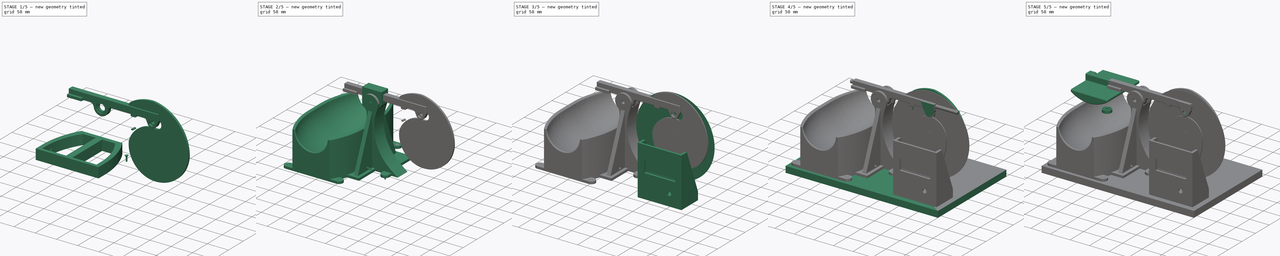
[diagram: build sequence overview — one tinted view per stage of 5, left to right]
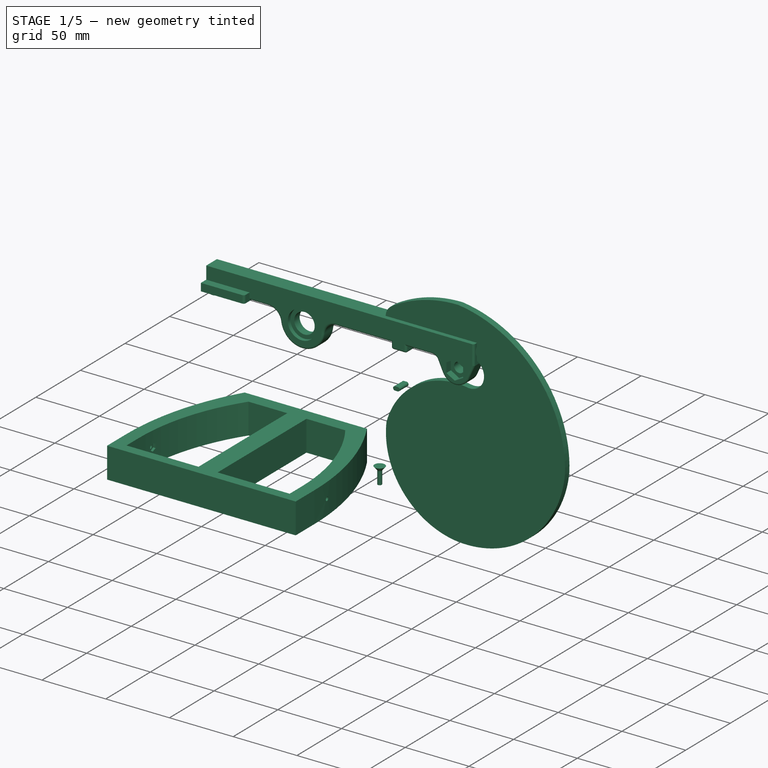
[diagram: stage 1 of 5 — iso view after this stage's code; geometry added in this stage tinted green]
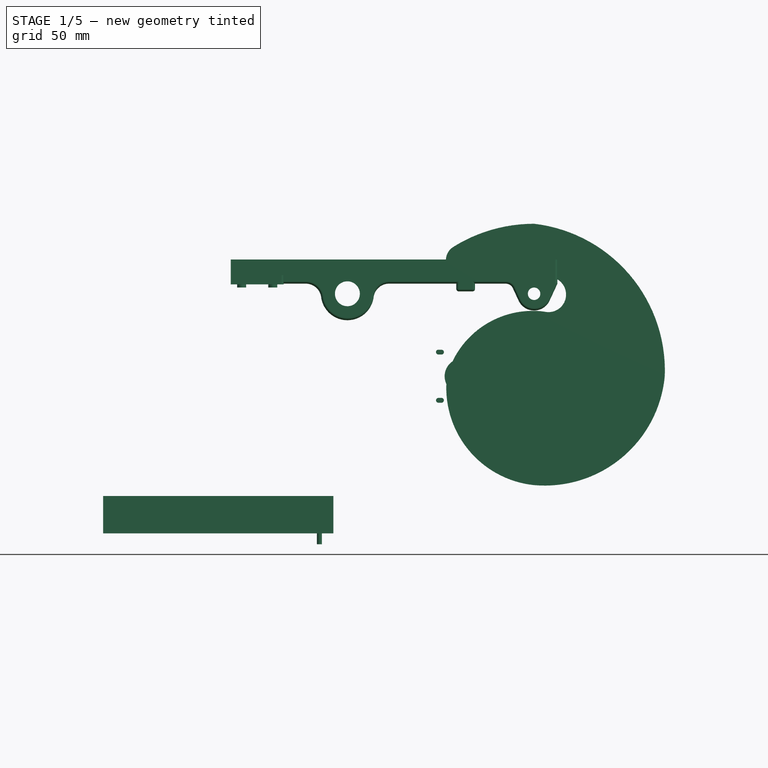
[diagram: stage 1 of 5 — front view after this stage's code; geometry added in this stage tinted green]
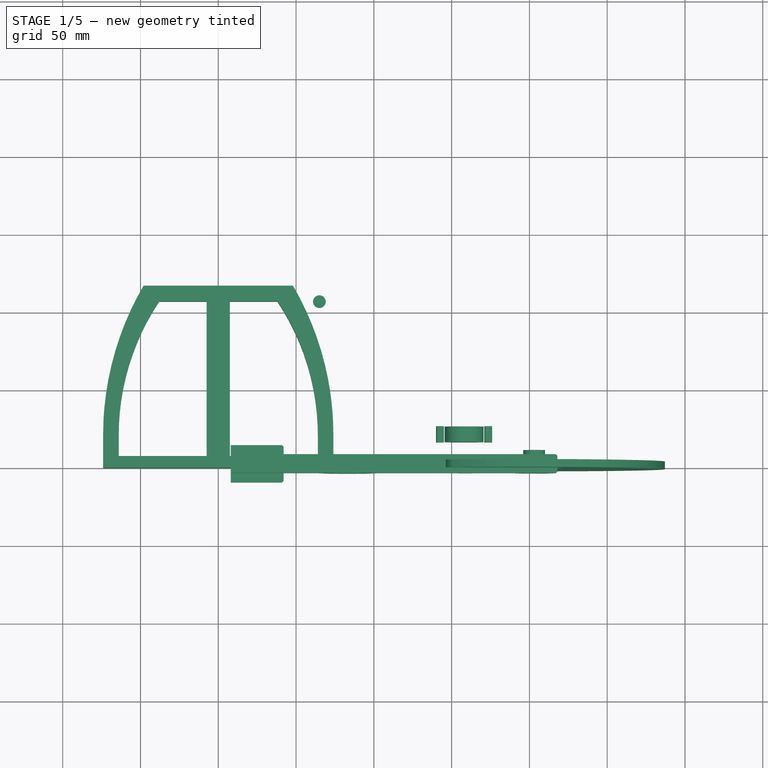
[diagram: stage 1 of 5 — top view after this stage's code; geometry added in this stage tinted green]
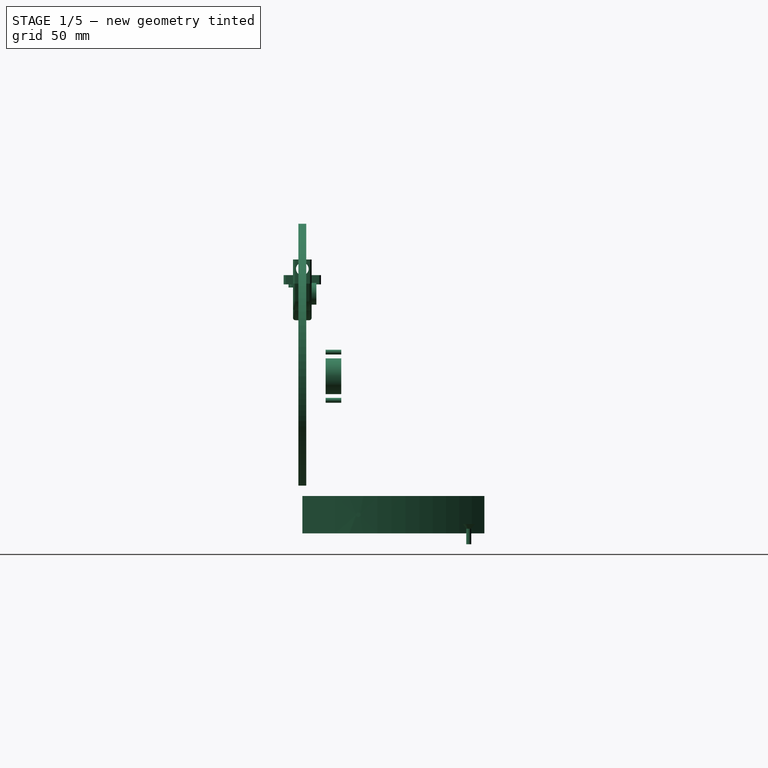
[diagram: stage 1 of 5 — right view after this stage's code; geometry added in this stage tinted green]
FCSTD DOCUMENT  (FreeCAD 0.19R)
Label: respirador23.0.1
License: All rights reserved
LicenseURL: http://en.wikipedia.org/wiki/All_rights_reserved
objects: Part::Cylinder×59, Part::MultiFuse×45, Part::Feature×34, Sketcher::SketchObject×23, Part::Extrusion×21, Part::Box×18, Part::Cut×18, Part::Prism×12, App::Link×5, Part::Fillet×5, Part::Cone×3, App::LinkGroup×2, Part::FeaturePython×2, App::DocumentObjectGroup×2, Part::Compound2×1, Part::Revolution×1
note: 241 computed .brp shape members not serialized (recipe doc carries the construction recipe); baked Part::Feature solids carry a one-line shape summary decoded from their .brp

FEATURE [Part::Extrusion] Extrude026
  Base = -> Sketch019
  Dir = (0,0,1)
  DirMode = 2
  FaceMakerClass = Part::FaceMakerBullseye
  LengthFwd = 0
  LengthRev = 24
  Solid = true
  Symmetric = false
FEATURE [Part::Cone] Cone003  label="Cono003"
  Angle = 360
  AttacherType = Attacher::AttachEngine3D
  Height = 3
  Placement = pos=(0,0,-96) rot=(0,0,1;0rad)
  Radius1 = 1.6
  Radius2 = 4.1
FEATURE [Part::Cylinder] Cylinder063  label="Cilindro063"
  Angle = 360
  AttacherType = Attacher::AttachEngine3D
  Height = 10
  Placement = pos=(0,0,-106) rot=(0,0,1;0rad)
  Radius = 1.6
FEATURE [Part::MultiFuse] Fusion058
  Placement = pos=(65,107,0) rot=(0,0,1;0rad)
  Refine = true
  Shapes = -> [Cylinder063,Cone003]
FEATURE [Part::Prism] Prism010  label="Prisma010"
  AttacherType = Attacher::AttachEngine3D
  Circumradius = 3
  Height = 3
  Placement = pos=(65,36,-87) rot=(0,-1,0;1.5708rad)
  Polygon = 6
FEATURE [Part::Cylinder] Cylinder068  label="Cilindro068"
  Angle = 360
  AttacherType = Attacher::AttachEngine3D
  Height = 5
  Placement = pos=(89,36,-87) rot=(0,-1,0;1.5708rad)
  Radius = 3
FEATURE [Part::Cylinder] Cylinder070  label="Cilindro070"
  Angle = 360
  AttacherType = Attacher::AttachEngine3D
  Height = 45
  Placement = pos=(98,36,-87) rot=(0,-1,0;1.5708rad)
  Radius = 1.5
FEATURE [Part::MultiFuse] Fusion062
  Refine = true
  Shapes = -> [Cylinder068,Cylinder070,Prism010]
FEATURE [Part::Cylinder] Cylinder071  label="Cilindro071"
  Angle = 360
  AttacherType = Attacher::AttachEngine3D
  Height = 5
  Placement = pos=(24,0,-87) rot=(0,-1,0;1.5708rad)
  Radius = 3
FEATURE [Part::Prism] Prism011  label="Prisma011"
  AttacherType = Attacher::AttachEngine3D
  Circumradius = 3
  Height = 3
  Placement = pos=(0,0,-87) rot=(0,-1,0;1.5708rad)
  Polygon = 6
FEATURE [Part::Cylinder] Cylinder072  label="Cilindro072"
  Angle = 360
  AttacherType = Attacher::AttachEngine3D
  Height = 45
  Placement = pos=(33,0,-87) rot=(0,-1,0;1.5708rad)
  Radius = 1.5
FEATURE [Part::MultiFuse] Fusion063
  Placement = pos=(-65,36,0) rot=(0,0,1;3.14159rad)
  Refine = true
  Shapes = -> [Cylinder071,Cylinder072,Prism011]
FEATURE [Part::MultiFuse] Fusion061
  Refine = true
  Shapes = -> [Fusion062,Fusion063]
FEATURE [Part::Cut] Cut023
  Base = -> Extrude026
  Refine = true
  Tool = -> Fusion061
FEATURE [Sketcher::SketchObject] Sketch021
  Placement = pos=(0,0,0) rot=(1,0,0;1.5708rad)
  sketch-geometry (12):
    g0: ArcOfCircle CenterX=0 CenterY=0 CenterZ=0 NormalX=0 NormalY=0 NormalZ=1 AngleXU=0 Radius=42 StartAngle=5.14872 EndAngle=9.41875
    g1: ArcOfCircle CenterX=111.998 CenterY=-0.674699 CenterZ=0 NormalX=0 NormalY=0 NormalZ=1 AngleXU=0 Radius=154 StartAngle=3.13557 EndAngle=3.77546
    g2: ArcOfCircle CenterX=0 CenterY=-83 CenterZ=0 NormalX=0 NormalY=0 NormalZ=1 AngleXU=0 Radius=15 StartAngle=3.77546 EndAngle=4.71239
    g3: LineSegment [constr] StartX=0 StartY=0 StartZ=0 EndX=0 EndY=-83 EndZ=0
    g4: ArcOfCircle CenterX=27.4702 CenterY=-58.91 CenterZ=0 NormalX=0 NormalY=0 NormalZ=1 AngleXU=0 Radius=23 StartAngle=2.00713 EndAngle=5.14872
    g5: LineSegment [constr] StartX=0 StartY=0 StartZ=0 EndX=27.4702 EndY=-58.91 EndZ=0
    g6: ArcOfCircle CenterX=0 CenterY=0 CenterZ=0 NormalX=0 NormalY=0 NormalZ=1 AngleXU=0 Radius=88 StartAngle=5.14872 EndAngle=5.32325
    g7: LineSegment [constr] StartX=50.4747 StartY=-72.0854 StartZ=0 EndX=0 EndY=0 EndZ=0
    g8: ArcOfCircle CenterX=0 CenterY=-1e-16 CenterZ=0 NormalX=0 NormalY=0 NormalZ=1 AngleXU=0 Radius=98 StartAngle=4.71239 EndAngle=5.34199
    g9: ArcOfCircle CenterX=58.0184 CenterY=-73.7435 CenterZ=0 NormalX=0 NormalY=0 NormalZ=1 AngleXU=0 Radius=5.50536 StartAngle=5.3489 EndAngle=8.49748
    g10: LineSegment [constr] StartX=52.3489 StartY=-72.1512 StartZ=0 EndX=58.0184 EndY=-73.7435 EndZ=0
    g11: LineSegment [constr] StartX=58.0184 StartY=-73.7435 StartZ=0 EndX=57.6551 EndY=-78.1575 EndZ=0
  constraints (26):
    c: Coincident(g2,g3)
    c: Coincident(g0,g3)
    c: Tangent(g0,g1) = -1.5708
    c: Tangent(g2,g1) = -1.5708
    c: Radius(g0) = 42
    c: Radius(g2) = 15
    c: DistanceX(g-1,g0) = 0
    c: DistanceY(g-1,g0) = 0
    c: Distance(g3) = 83
    c: Radius(g1) = 154
    c: Radius(g4) = 23
    c: Coincident(g5,g0)
    c: Coincident(g5,g4)
    c: Coincident(g6,g0)
    c: Tangent(g6,g4) = -1.5708
    c: Coincident(g7,g6)
    c: Coincident(g7,g0)
    c: Tangent(g0,g4) = 1.5708
    c: PointOnObject(g2,g-2)
    c: Angle(g7,g-2) = 2.53073
    c: Tangent(g8,g2) = -1.5708
    c: Radius(g8) = 98
    c: PointOnObject(g2,g-2)
    c: Angle(g5,g7) = 0.174533
    c: Coincident(g9,g10)
    c: Coincident(g9,g11)
FEATURE [Sketcher::SketchObject] Sketch022
  Placement = pos=(0,0,0) rot=(1,0,0;1.5708rad)
  sketch-geometry (9):
    g0: ArcOfCircle CenterX=7.1e-15 CenterY=0 CenterZ=0 NormalX=0 NormalY=0 NormalZ=1 AngleXU=0 Radius=65 StartAngle=1.309 EndAngle=1.8326
    g1: ArcOfCircle CenterX=7.1e-15 CenterY=0 CenterZ=0 NormalX=0 NormalY=0 NormalZ=1 AngleXU=0 Radius=98 StartAngle=1.01229 EndAngle=2.1293
    g2: ArcOfCircle CenterX=-18.8938 CenterY=70.5126 CenterZ=0 NormalX=0 NormalY=0 NormalZ=1 AngleXU=0 Radius=8 StartAngle=4.51326 EndAngle=4.97419
    g3: ArcOfCircle CenterX=-47.6927 CenterY=76.3243 CenterZ=0 NormalX=0 NormalY=0 NormalZ=1 AngleXU=0 Radius=8 StartAngle=2.1293 EndAngle=4.51326
    g4: LineSegment StartX=-49.2753 StartY=68.4824 StartZ=0 EndX=-20.4763 EndY=62.6707 EndZ=0
    g5: LineSegment StartX=20.4763 StartY=62.6707 StartZ=0 EndX=49.2753 EndY=68.4824 EndZ=0
    g6: ArcOfCircle CenterX=18.8938 CenterY=70.5126 CenterZ=0 NormalX=0 NormalY=0 NormalZ=1 AngleXU=0 Radius=8 StartAngle=4.45059 EndAngle=4.91152
    g7: ArcOfCircle CenterX=47.6927 CenterY=76.3243 CenterZ=0 NormalX=0 NormalY=0 NormalZ=1 AngleXU=0 Radius=8 StartAngle=4.91152 EndAngle=7.29548
    g8: LineSegment [constr] StartX=47.6927 StartY=76.3243 StartZ=0 EndX=7.1e-15 EndY=0 EndZ=0
  constraints (20):
    c: Coincident(g1,g0)
    c: Radius(g3) = 8
    c: Tangent(g3,g1) = -1.5708
    c: Equal(g3,g2)
    c: Tangent(g3,g4) = -1.5708
    c: Tangent(g2,g4) = -1.5708
    c: Tangent(g2,g0) = 1.5708
    c: Tangent(g0,g6) = 1.5708
    c: Tangent(g6,g5) = -1.5708
    c: Radius(g1) = 98
    c: Radius(g0) = 65
    c: Tangent(g7,g5) = -1.5708
    c: Tangent(g7,g1) = -1.5708
    c: Coincident(g0,g-1)
    c: Symmetric(g6,g2,g-2)
    c: Angle(g0) = 0.523599
    c: Symmetric(g3,g7,g-2)
    c: Coincident(g8,g7)
    c: Coincident(g8,g0)
    c: Angle(g8,g-2) = 0.558505
FEATURE [App::DocumentObjectGroup] Grupo001  label="sin uso"
  Group = -> [Fusion003_solid,Fusion003,Fusion008,Fusion014,Cylinder042,Sketch021,Sketch022,Extrude004,Fillet002]
FEATURE [Sketcher::SketchObject] Sketch023
  Placement = pos=(0,0,0) rot=(1,0,0;1.5708rad)
  sketch-geometry (30):
    g0: ArcOfCircle CenterX=-1 CenterY=0 CenterZ=0 NormalX=0 NormalY=0 NormalZ=1 AngleXU=0 Radius=11.5 StartAngle=1.5708 EndAngle=4.71239
    g1: ArcOfCircle CenterX=1 CenterY=0 CenterZ=0 NormalX=0 NormalY=0 NormalZ=1 AngleXU=0 Radius=11.5 StartAngle=4.71239 EndAngle=7.85398
    g2: LineSegment StartX=-1 StartY=-11.5 StartZ=0 EndX=1 EndY=-11.5 EndZ=0
    g3: LineSegment StartX=-1 StartY=11.5 StartZ=0 EndX=1 EndY=11.5 EndZ=0
    g4: LineSegment [constr] StartX=-1 StartY=0 StartZ=0 EndX=0 EndY=0 EndZ=0
    g5: LineSegment [constr] StartX=0 StartY=0 StartZ=0 EndX=1 EndY=0 EndZ=0
    g6: ArcOfCircle CenterX=-16.5 CenterY=15.5 CenterZ=0 NormalX=0 NormalY=0 NormalZ=1 AngleXU=0 Radius=1.55 StartAngle=1.5708 EndAngle=4.71239
    g7: ArcOfCircle CenterX=-14.5 CenterY=15.5 CenterZ=0 NormalX=0 NormalY=0 NormalZ=1 AngleXU=0 Radius=1.55 StartAngle=4.71239 EndAngle=7.85398
    g8: LineSegment StartX=-16.5 StartY=13.95 StartZ=0 EndX=-14.5 EndY=13.95 EndZ=0
    g9: LineSegment StartX=-16.5 StartY=17.05 StartZ=0 EndX=-14.5 EndY=17.05 EndZ=0
    g10: LineSegment [constr] StartX=-16.5 StartY=15.5 StartZ=0 EndX=-15.5 EndY=15.5 EndZ=0
    g11: LineSegment [constr] StartX=-15.5 StartY=15.5 StartZ=0 EndX=-14.5 EndY=15.5 EndZ=0
    g12: ArcOfCircle CenterX=14.5 CenterY=15.5 CenterZ=0 NormalX=0 NormalY=0 NormalZ=1 AngleXU=0 Radius=1.55 StartAngle=1.5708 EndAngle=4.71239
    g13: ArcOfCircle CenterX=16.5 CenterY=15.5 CenterZ=0 NormalX=0 NormalY=0 NormalZ=1 AngleXU=0 Radius=1.55 StartAngle=4.71239 EndAngle=7.85398
    g14: LineSegment StartX=14.5 StartY=13.95 StartZ=0 EndX=16.5 EndY=13.95 EndZ=0
    g15: LineSegment StartX=14.5 StartY=17.05 StartZ=0 EndX=16.5 EndY=17.05 EndZ=0
    g16: LineSegment [constr] StartX=14.5 StartY=15.5 StartZ=0 EndX=15.5 EndY=15.5 EndZ=0
    g17: LineSegment [constr] StartX=15.5 StartY=15.5 StartZ=0 EndX=16.5 EndY=15.5 EndZ=0
    g18: ArcOfCircle CenterX=-16.5 CenterY=-15.5 CenterZ=0 NormalX=0 NormalY=0 NormalZ=1 AngleXU=0 Radius=1.55 StartAngle=1.5708 EndAngle=4.71239
    g19: ArcOfCircle CenterX=-14.5 CenterY=-15.5 CenterZ=0 NormalX=0 NormalY=0 NormalZ=1 AngleXU=0 Radius=1.55 StartAngle=4.71239 EndAngle=7.85398
    g20: LineSegment StartX=-16.5 StartY=-17.05 StartZ=0 EndX=-14.5 EndY=-17.05 EndZ=0
    g21: LineSegment StartX=-16.5 StartY=-13.95 StartZ=0 EndX=-14.5 EndY=-13.95 EndZ=0
    g22: LineSegment [constr] StartX=-16.5 StartY=-15.5 StartZ=0 EndX=-15.5 EndY=-15.5 EndZ=0
    g23: LineSegment [constr] StartX=-15.5 StartY=-15.5 StartZ=0 EndX=-14.5 EndY=-15.5 EndZ=0
    g24: LineSegment [constr] StartX=14.5 StartY=-15.5 StartZ=0 EndX=15.5 EndY=-15.5 EndZ=0
    g25: LineSegment [constr] StartX=16.5 StartY=-15.5 StartZ=0 EndX=15.5 EndY=-15.5 EndZ=0
    g26: ArcOfCircle CenterX=14.5 CenterY=-15.5 CenterZ=0 NormalX=0 NormalY=0 NormalZ=1 AngleXU=0 Radius=1.55 StartAngle=1.5708 EndAngle=4.71239
    g27: ArcOfCircle CenterX=16.5 CenterY=-15.5 CenterZ=0 NormalX=0 NormalY=0 NormalZ=1 AngleXU=0 Radius=1.55 StartAngle=4.71238 EndAngle=7.85398
    g28: LineSegment StartX=14.5 StartY=-13.95 StartZ=0 EndX=16.5 EndY=-13.95 EndZ=0
    g29: LineSegment StartX=14.5 StartY=-17.05 StartZ=0 EndX=16.5 EndY=-17.05 EndZ=0
  constraints (84):
    c: Symmetric(g22,g10,g-1)
    c: Coincident(g23,g22)
    c: Horizontal(g22)
    c: Horizontal(g23)
    c: Coincident(g18,g22)
    c: Equal(g21,g20)
    c: Equal(g20,g8)
    c: Equal(g8,g9)
    c: Equal(g9,g15)
    c: Equal(g15,g14)
    c: Coincident(g10,g11)
    c: Horizontal(g10)
    c: Horizontal(g11)
    c: Coincident(g6,g10)
    c: Coincident(g7,g11)
    c: Coincident(g7,g9)
    c: Coincident(g6,g8)
    c: Equal(g6,g7)
    c: Equal(g7,g12)
    c: Equal(g12,g13)
    c: Equal(g13,g18)
    c: Equal(g18,g19)
    c: Coincident(g21,g19)
    c: Coincident(g18,g20)
    c: Coincident(g19,g20)
    c: Coincident(g19,g23)
    c: Horizontal(g21)
    c: Horizontal(g20)
    c: Tangent(g18,g21) = 1.5708
    c: Equal(g23,g22)
    c: Equal(g22,g10)
    c: Equal(g10,g11)
    c: Equal(g16,g17)
    c: Equal(g16,g11)
    c: Tangent(g6,g9) = 1.5708
    c: Tangent(g7,g8) = -1.5708
    c: Radius(g6) = 1.55
    c: Coincident(g12,g14)
    c: Coincident(g12,g16)
    c: Coincident(g13,g17)
    c: Coincident(g13,g15)
    c: Horizontal(g16)
    c: Horizontal(g17)
    c: Coincident(g16,g17)
    c: Tangent(g12,g15) = 1.5708
    c: Tangent(g13,g14) = -1.5708
    c: Symmetric(g10,g16,g-2)
    c: DistanceX(g10,g16) = 31
    c: DistanceY(g22,g10) = 31
    c: DistanceX(g22,g22) = 1
    c: Radius(g1) = 11.5
    c: Equal(g0,g1)
    c: Horizontal(g3)
    c: Coincident(g0,g4)
    c: Coincident(g1,g5)
    c: Coincident(g4,g5)
    c: Coincident(g4,g-1)
    c: Horizontal(g4)
    c: Equal(g4,g5)
    c: Coincident(g0,g2)
    c: Tangent(g1,g2) = -1.5708
    c: Tangent(g0,g3) = 1.5708
    c: Coincident(g1,g3)
    c: Horizontal(g5)
    c: Horizontal(g2)
    c: Equal(g4,g22)
    c: Horizontal(g24)
    c: Horizontal(g25)
    c: Equal(g25,g24)
    c: Equal(g24,g22)
    c: Coincident(g24,g25)
    c: Horizontal(g24,g22)
    c: Vertical(g16,g24)
    c: Coincident(g26,g24)
    c: Coincident(g27,g25)
    c: Coincident(g28,g26)
    c: Coincident(g28,g27)
    c: Tangent(g28,g27)
    c: Coincident(g29,g27)
    c: Tangent(g29,g26) = -1.5708
    c: Equal(g26,g27)
    c: Equal(g27,g19)
    c: Horizontal(g28)
    c: Horizontal(g29)
FEATURE [Part::Extrusion] Extrude031
  Base = -> Sketch023
  Dir = (0,-1,9e-16)
  DirMode = 2
  FaceMakerClass = Part::FaceMakerBullseye
  LengthFwd = 10
  LengthRev = 0
  Placement = pos=(158,25,2) rot=(0,0,1;0rad)
  Solid = true
  Symmetric = false
FEATURE [Part::Box] Box018  label="Cubo017"
  AttacherType = Attacher::AttachEngine3D
  Height = 6
  Length = 34
  Placement = pos=(8,-12,61) rot=(0,0,1;0rad)
  Width = 24
FEATURE [Sketcher::SketchObject] Sketch024
  Placement = pos=(0,0,0) rot=(1,0,0;1.5708rad)
  sketch-geometry (16):
    g0: LineSegment StartX=8 StartY=77 StartZ=0 EndX=218 EndY=77 EndZ=0
    g1: LineSegment StartX=218 StartY=77 StartZ=0 EndX=218 EndY=61.5 EndZ=0
    g2: ArcOfCircle CenterX=83 CenterY=55 CenterZ=0 NormalX=0 NormalY=0 NormalZ=1 AngleXU=0 Radius=17 StartAngle=3.27159 EndAngle=6.15319
    g3: ArcOfCircle CenterX=109.772 CenterY=51.5 CenterZ=0 NormalX=0 NormalY=0 NormalZ=1 AngleXU=0 Radius=10 StartAngle=1.5708 EndAngle=3.0116
    g4: LineSegment StartX=109.772 StartY=61.5 StartZ=0 EndX=153 EndY=61.5 EndZ=0
    g5: LineSegment StartX=8 StartY=77 StartZ=0 EndX=8 EndY=61.5 EndZ=0
    g6: LineSegment StartX=8 StartY=61.5 StartZ=0 EndX=56.2278 EndY=61.5 EndZ=0
    g7: ArcOfCircle CenterX=56.2278 CenterY=51.5 CenterZ=0 NormalX=0 NormalY=0 NormalZ=1 AngleXU=0 Radius=10 StartAngle=0.129995 EndAngle=1.5708
    g8: LineSegment StartX=153 StartY=61.5 StartZ=0 EndX=153 EndY=56.5 EndZ=0
    g9: LineSegment StartX=153 StartY=56.5 StartZ=0 EndX=165 EndY=56.5 EndZ=0
    g10: LineSegment StartX=165 StartY=56.5 StartZ=0 EndX=165 EndY=61.5 EndZ=0
    g11: LineSegment StartX=165 StartY=61.5 StartZ=0 EndX=184.801 EndY=61.5 EndZ=0
    g12: LineSegment StartX=218 StartY=61.5 StartZ=0 EndX=212.987 EndY=50.6401 EndZ=0
    g13: ArcOfCircle CenterX=203 CenterY=55.25 CenterZ=0 NormalX=0 NormalY=0 NormalZ=1 AngleXU=0 Radius=11 StartAngle=3.57402 EndAngle=5.85075
    g14: LineSegment StartX=193.013 StartY=50.6401 StartZ=0 EndX=189.341 EndY=58.5954 EndZ=0
    g15: ArcOfCircle CenterX=184.801 CenterY=56.5 CenterZ=0 NormalX=0 NormalY=0 NormalZ=1 AngleXU=0 Radius=5 StartAngle=0.432431 EndAngle=1.5708
  constraints (45):
    c: Horizontal(g0)
    c: Coincident(g0,g1)
    c: Vertical(g1)
    c: Tangent(g3,g4) = 1.5708
    c: Tangent(g2,g3) = 1.5708
    c: Vertical(g5)
    c: Coincident(g5,g6)
    c: Horizontal(g6)
    c: Coincident(g0,g5)
    c: DistanceY(g-1,g5) = 61.5
    c: DistanceY(g5,g5) = 15.5
    c: DistanceY(g2,g0) = 22
    c: Radius(g3) = 10
    c: Tangent(g6,g7) = 1.5708
    c: Equal(g7,g3)
    c: Tangent(g7,g2) = 1.5708
    c: Radius(g2) = 17
    c: DistanceX(g0,g0) = 210
    c: DistanceX(g-1,g5) = 8
    c: DistanceX(g0,g2) = 75
    c: Horizontal(g3,g6)
    c: Horizontal(g4)
    c: Vertical(g8)
    c: Coincident(g8,g9)
    c: Horizontal(g9)
    c: Coincident(g9,g10)
    c: Vertical(g10)
    c: DistanceX(g9,g9) = 12
    c: DistanceX(g9,g1) = 53
    c: Coincident(g4,g8)
    c: Coincident(g11,g10)
    c: Tangent(g4,g11)
    c: DistanceY(g8,g8) = 5
    c: DistanceY(g13,g12) = 6.25
    c: DistanceX(g13,g12) = 15
    c: Tangent(g13,g12) = 1.5708
    c: Coincident(g12,g1)
    c: Tangent(g14,g13) = 1.5708
    c: Horizontal(g13,g12)
    c: Radius(g13) = 11
    c: Tangent(g14,g15) = -1.5708
    c: Radius(g15) = 5
    c: Tangent(g15,g11)
    c: Coincident(g11,g15)
    c: Horizontal(g1,g10)
FEATURE [Part::Extrusion] Extrude032
  Base = -> Sketch024
  Dir = (0,-1,2e-16)
  DirMode = 2
  FaceMakerClass = Part::FaceMakerBullseye
  LengthFwd = 6
  LengthRev = 6
  Solid = true
  Symmetric = false
FEATURE [Part::Cylinder] Cylinder073  label="Cilindro073"
  Angle = 360
  AttacherType = Attacher::AttachEngine3D
  Height = 10
  Placement = pos=(83,-3,55) rot=(1,0,0;1.5708rad)
  Radius = 11
FEATURE [Part::Cylinder] Cylinder074  label="Cilindro074"
  Angle = 360
  AttacherType = Attacher::AttachEngine3D
  Height = 10
  Placement = pos=(83,3,55) rot=(-1,0,0;1.5708rad)
  Radius = 11
FEATURE [Part::Cylinder] Cylinder075  label="Cilindro075"
  Angle = 360
  AttacherType = Attacher::AttachEngine3D
  Height = 28
  Placement = pos=(83,-14,55) rot=(-1,0,0;1.5708rad)
  Radius = 8
FEATURE [Part::Cylinder] Cylinder076  label="Cilindro076"
  Angle = 360
  AttacherType = Attacher::AttachEngine3D
  Height = 10
  Placement = pos=(83,-3,55) rot=(1,0,0;1.5708rad)
  Radius = 11
FEATURE [Part::Cylinder] Cylinder081  label="Cilindro081"
  Angle = 360
  AttacherType = Attacher::AttachEngine3D
  Height = 2
  Placement = pos=(35,6,61) rot=(1,0,0;3.14159rad)
  Radius = 2.9
FEATURE [Part::Cylinder] Cylinder082  label="Cilindro082"
  Angle = 360
  AttacherType = Attacher::AttachEngine3D
  Height = 2
  Placement = pos=(15,-6,61) rot=(1,0,0;3.14159rad)
  Radius = 2.9
FEATURE [Part::Box] Box019  label="Cubo018"
  AttacherType = Attacher::AttachEngine3D
  Height = 3
  Length = 23
  Placement = pos=(0,-2.6,0) rot=(-1,0,0;0rad)
  Width = 5.2
FEATURE [Part::Cylinder] Cylinder083  label="Cilindro083"
  Angle = 360
  AttacherType = Attacher::AttachEngine3D
  Height = 21
  Placement = pos=(0,0,-6) rot=(-1,0,0;0rad)
  Radius = 1.7
FEATURE [Part::Prism] Prism012  label="Prisma012"
  AttacherType = Attacher::AttachEngine3D
  Circumradius = 3
  Height = 3
  Polygon = 6
FEATURE [Part::MultiFuse] Fusion068  label="hueco_tornillo004"
  Placement = pos=(159,-1.38e-13,62) rot=(0.707107,0.707107,0;3.14159rad)
  Refine = true
  Shapes = -> [Prism012,Cylinder083,Box019]
FEATURE [Sketcher::SketchObject] Sketch026
  Placement = pos=(0,0,0) rot=(0.57735,0.57735,0.57735;2.0944rad)
  sketch-geometry (6):
    g0: ArcOfCircle CenterX=0 CenterY=0 CenterZ=0 NormalX=0 NormalY=0 NormalZ=1 AngleXU=0 Radius=4.05 StartAngle=5.58505 EndAngle=10.1229
    g1: LineSegment StartX=-3.10248 StartY=-2.60329 StartZ=0 EndX=-1.88855 EndY=-4.05 EndZ=0
    g2: LineSegment StartX=3.10248 StartY=-2.60329 StartZ=0 EndX=1.88855 EndY=-4.05 EndZ=0
    g3: LineSegment StartX=-1.88855 StartY=-4.05 StartZ=0 EndX=0 EndY=-4.05 EndZ=0
    g4: LineSegment StartX=0 StartY=-4.05 StartZ=0 EndX=1.88855 EndY=-4.05 EndZ=0
    g5: LineSegment [constr] StartX=0 StartY=0 StartZ=0 EndX=0 EndY=-4.05 EndZ=0
  constraints (15):
    c: Horizontal(g3)
    c: Horizontal(g4)
    c: Coincident(g3,g4)
    c: Equal(g3,g4)
    c: Coincident(g1,g3)
    c: Coincident(g2,g4)
    c: Tangent(g0,g1) = -1.5708
    c: Tangent(g0,g2) = 1.5708
    c: Coincident(g5,g0)
    c: Coincident(g5,g3)
    c: Vertical(g5)
    c: Radius(g0) = 4.05
    c: DistanceY(g5,g5) = 4.05
    c: Angle(g2,g1) = 1.39626
    c: Coincident(g0,g-1)
FEATURE [Part::Extrusion] Extrude034
  Base = -> Sketch026
  Dir = (1,0,0)
  DirMode = 2
  FaceMakerClass = Part::FaceMakerBullseye
  LengthFwd = 275
  LengthRev = 0
  Placement = pos=(0,0,71) rot=(0,0,1;0rad)
  Solid = true
  Symmetric = false
FEATURE [Part::Cylinder] Cylinder084  label="Cilindro084"
  Angle = 360
  AttacherType = Attacher::AttachEngine3D
  Height = 3
  Placement = pos=(203,6,55) rot=(-1,0,0;1.5708rad)
  Radius = 7
FEATURE [Part::MultiFuse] Fusion066
  Refine = true
  Shapes = -> [Extrude032,Box018,Cylinder081,Cylinder082,Cylinder084]
FEATURE [Sketcher::SketchObject] Sketch027
  Placement = pos=(0,0,0) rot=(1,0,0;1.5708rad)
  sketch-geometry (17):
    g0: LineSegment [constr] StartX=0 StartY=1.78e-14 StartZ=0 EndX=0 EndY=-42 EndZ=0
    g1: LineSegment [constr] StartX=0 StartY=1.78e-14 StartZ=0 EndX=56 EndY=1.78e-14 EndZ=0
    g2: LineSegment [constr] StartX=0 StartY=1.78e-14 StartZ=0 EndX=0 EndY=70 EndZ=0
    g3: LineSegment [constr] StartX=0 StartY=1.78e-14 StartZ=0 EndX=-84 EndY=1.78e-14 EndZ=0
    g4: LineSegment [constr] StartX=0 StartY=1.78e-14 StartZ=0 EndX=0 EndY=-98 EndZ=0
    g5: ArcOfCircle CenterX=0 CenterY=1.78e-14 CenterZ=0 NormalX=0 NormalY=0 NormalZ=1 AngleXU=0 Radius=42 StartAngle=4.53786 EndAngle=4.71239
    g6: ArcOfCircle CenterX=-6.43093 CenterY=7.45526 CenterZ=0 NormalX=0 NormalY=0 NormalZ=1 AngleXU=0 Radius=62.8745 StartAngle=6.16433 EndAngle=7.75152
    g7: ArcOfCircle CenterX=-6.82144 CenterY=-7.21427 CenterZ=0 NormalX=0 NormalY=0 NormalZ=1 AngleXU=0 Radius=77.515 StartAngle=1.48268 EndAngle=3.04839
    g8: ArcOfCircle CenterX=10.9397 CenterY=-3.62308 CenterZ=0 NormalX=0 NormalY=0 NormalZ=1 AngleXU=0 Radius=95.0088 StartAngle=3.10345 EndAngle=4.59699
    g9: LineSegment [constr] StartX=0 StartY=1.78e-14 StartZ=0 EndX=-7.29322 EndY=-41.3619 EndZ=0
    g10: ArcOfCircle CenterX=0 CenterY=1.78e-14 CenterZ=0 NormalX=0 NormalY=0 NormalZ=1 AngleXU=0 Radius=98 StartAngle=4.71239 EndAngle=5.2715
    g11: LineSegment [constr] StartX=0 StartY=1.78e-14 StartZ=0 EndX=51.9824 EndY=-83.0773 EndZ=0
    g12: ArcOfCircle CenterX=0.889519 CenterY=15.1473 CenterZ=0 NormalX=0 NormalY=0 NormalZ=1 AngleXU=0 Radius=57.1542 StartAngle=4.69682 EndAngle=6.01496
    g13: ArcOfCircle CenterX=-9.25545 CenterY=-52.4903 CenterZ=0 NormalX=0 NormalY=0 NormalZ=1 AngleXU=0 Radius=11.3 StartAngle=1.39626 EndAngle=4.53786
    g14: LineSegment StartX=-1.19e-14 StartY=-64.6 StartZ=0 EndX=46.678 EndY=-64.6 EndZ=0
    g15: ArcOfCircle CenterX=46.678 CenterY=-74.6 CenterZ=0 NormalX=0 NormalY=0 NormalZ=1 AngleXU=0 Radius=10 StartAngle=5.2715 EndAngle=7.85398
    g16: ArcOfCircle CenterX=0 CenterY=1.78e-14 CenterZ=0 NormalX=0 NormalY=0 NormalZ=1 AngleXU=0 Radius=64.6 StartAngle=4.53786 EndAngle=4.71239
  constraints (45):
    c: Vertical(g0)
    c: Coincident(g1,g0)
    c: Horizontal(g1)
    c: Coincident(g2,g0)
    c: Vertical(g2)
    c: Coincident(g3,g0)
    c: DistanceX(g1,g1) = 56
    c: DistanceX(g3,g3) = 84
    c: Horizontal(g3)
    c: DistanceY(g2,g2) = 70
    c: DistanceY(g0,g0) = 42
    c: Coincident(g4,g0)
    c: Vertical(g4)
    c: DistanceY(g4,g4) = 98
    c: Coincident(g5,g0)
    c: Coincident(g6,g2)
    c: Coincident(g7,g3)
    c: Coincident(g9,g5)
    c: Coincident(g9,g5)
    c: Angle(g9,g0) = 0.174533
    c: Coincident(g-1,g5)
    c: Coincident(g3,g8)
    c: Coincident(g8,g4)
    c: Coincident(g10,g5)
    c: Coincident(g10,g8)
    c: Coincident(g7,g6)
    c: Coincident(g0,g5)
    c: Coincident(g11,g5)
    c: Coincident(g1,g6)
    c: Coincident(g12,g0)
    c: Coincident(g12,g6)
    c: Tangent(g13,g5) = 1.5708
    c: Radius(g13) = 11.3
    c: Tangent(g10,g15) = -1.5708
    c: Radius(g15) = 10
    c: Tangent(g14,g15) = 1.5708
    c: Coincident(g16,g5)
    c: Tangent(g13,g16) = -1.5708
    c: Coincident(g10,g11)
    c: Tangent(g14,g16) = -1.5708
    c: PointOnObject(g14,g4)
    c: DistanceX(g8) = 10.9397
    c: DistanceX(g7) = -6.82144
    c: DistanceX(g6) = -6.43093
    c: DistanceX(g12) = 0.889519
FEATURE [Part::Extrusion] Extrude035
  Base = -> Sketch027
  Dir = (0,-1,1.1e-15)
  DirMode = 2
  FaceMakerClass = Part::FaceMakerBullseye
  LengthFwd = 5
  LengthRev = 0
  Placement = pos=(203,2.5,2) rot=(0,1,0;3.14159rad)
  Solid = true
  Symmetric = false
FEATURE [Part::Prism] Prism013  label="Prisma013"
  AttacherType = Attacher::AttachEngine3D
  Circumradius = 7.55
  Height = 6
  Polygon = 6
FEATURE [Part::Cylinder] Cylinder085  label="Cilindro085"
  Angle = 360
  AttacherType = Attacher::AttachEngine3D
  Height = 70
  Radius = 4
FEATURE [Part::MultiFuse] Fusion069  label="Tornillo_M010"
  Placement = pos=(203,-7,55) rot=(0.57735,0.57735,0.57735;4.18879rad)
  Refine = true
  Shapes = -> [Prism013,Cylinder085]
FEATURE [Part::MultiFuse] Fusion065
  Refine = true
  Shapes = -> [Cylinder073,Cylinder074,Cylinder075,Cylinder076,Fusion068,Extrude034,Fusion069]
FEATURE [Part::Cut] Cut024
  Base = -> Fusion066
  Refine = true
  Tool = -> Fusion065
FEATURE [Part::Fillet] Fillet005
  Base = -> Cut024
  Edges = 31 edges r=1.6: [Edge4,Edge6,Edge7,Edge8,Edge9,Edge10,Edge11,Edge12,Edge13,Edge14,Edge15,Edge16,Edge17,Edge18,Edge40,Edge49,Edge51,Edge53,Edge57,Edge59,Edge61,Edge63,Edge65,Edge67,Edge69,Edge71,Edge72,Edge73,Edge74,Edge75,Edge76]
FEATURE [App::DocumentObjectGroup] Grupo
  Group = -> [Fusion003_solid002,Fusion003_solid003,Fusion003_solid004,Cylinder005,Fillet001,Box005,Cut007,Cut009,Solid013,Fusion003_solid005,Fusion003_solid006,Cut008,Compound,Cut017,Cut020,Fusion060,Fusion064,Fillet005]
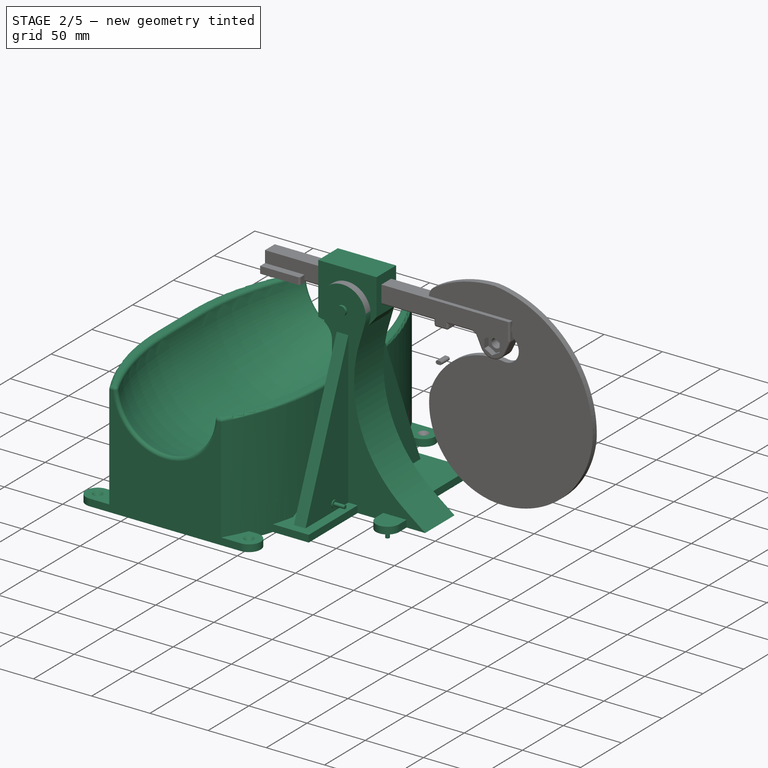
[diagram: stage 2 of 5 — iso view after this stage's code; geometry added in this stage tinted green]
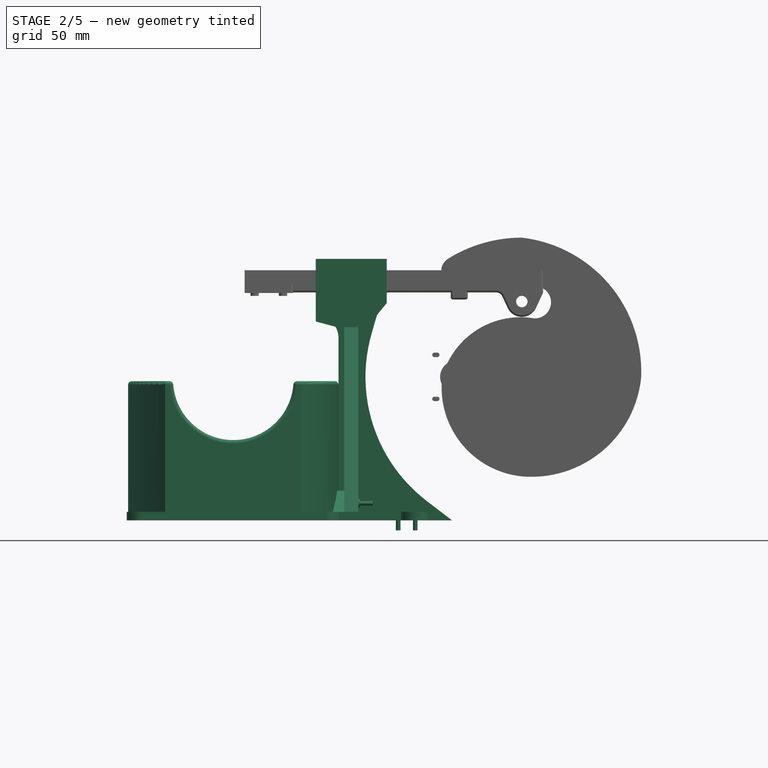
[diagram: stage 2 of 5 — front view after this stage's code; geometry added in this stage tinted green]
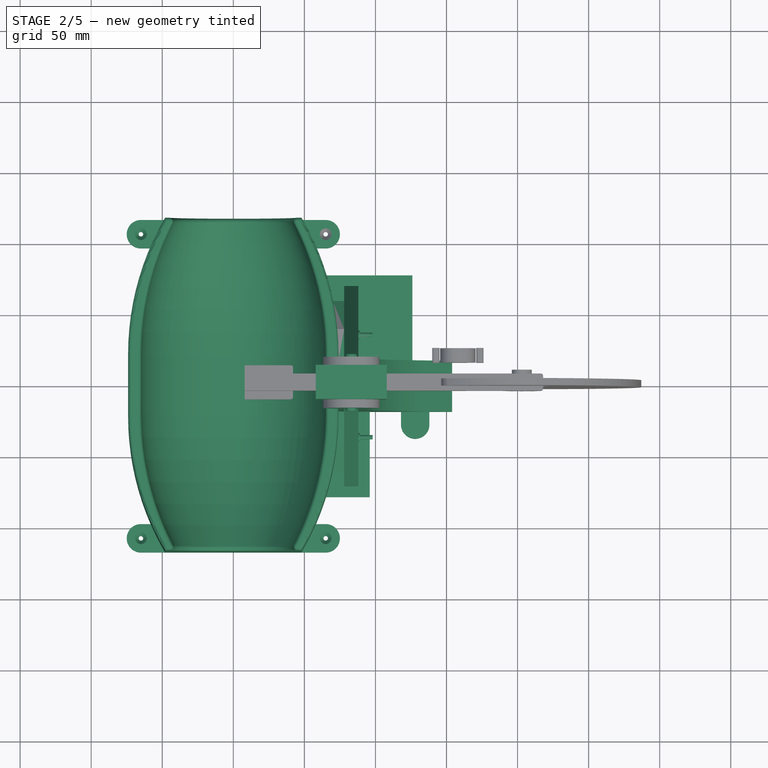
[diagram: stage 2 of 5 — top view after this stage's code; geometry added in this stage tinted green]
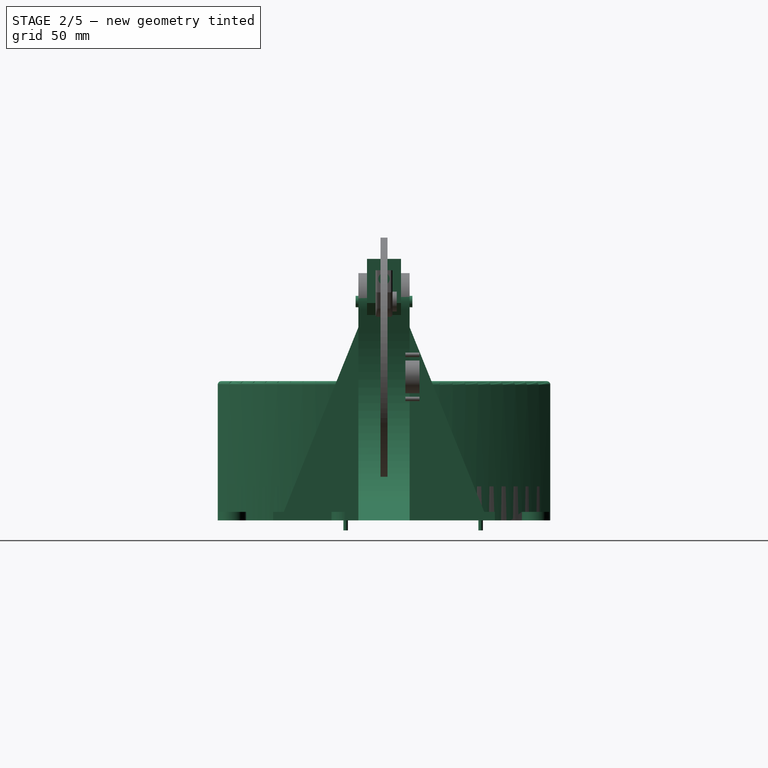
[diagram: stage 2 of 5 — right view after this stage's code; geometry added in this stage tinted green]
FEATURE [Part::Cylinder] Cylinder043  label="Cilindro043"
  Angle = 360
  AttacherType = Attacher::AttachEngine3D
  Height = 40
  Placement = pos=(83,-20,55) rot=(-1,0,0;1.5708rad)
  Radius = 4
FEATURE [Part::Cylinder] Cylinder044  label="Cilindro044"
  Angle = 360
  AttacherType = Attacher::AttachEngine3D
  Height = 2
  Placement = pos=(83,-12,55) rot=(-1,0,0;1.5708rad)
  Radius = 7
FEATURE [Part::Cylinder] Cylinder045  label="Cilindro045"
  Angle = 360
  AttacherType = Attacher::AttachEngine3D
  Height = 2
  Placement = pos=(83,10,55) rot=(-1,0,0;1.5708rad)
  Radius = 7
FEATURE [Sketcher::SketchObject] Sketch009
  Placement = pos=(0,0,0) rot=(1,0,0;1.5708rad)
  sketch-geometry (7):
    g0: LineSegment StartX=74 StartY=-99 StartZ=0 EndX=74 EndY=29.5245 EndZ=0
    g1: LineSegment StartX=74 StartY=-99 StartZ=0 EndX=154 EndY=-99 EndZ=0
    g2: LineSegment StartX=154 StartY=-99 StartZ=0 EndX=136.199 EndY=-85.3937 EndZ=0
    g3: ArcOfCircle CenterX=59 CenterY=29.5245 CenterZ=0 NormalX=0 NormalY=0 NormalZ=1 AngleXU=0 Radius=15 StartAngle=0 EndAngle=0.815212
    g4: ArcOfCircle CenterX=83 CenterY=55 CenterZ=0 NormalX=0 NormalY=0 NormalZ=1 AngleXU=0 Radius=20 StartAngle=6.00169 EndAngle=10.24
    g5: ArcOfCircle CenterX=203 CenterY=2 CenterZ=0 NormalX=0 NormalY=0 NormalZ=1 AngleXU=0 Radius=110 StartAngle=2.86009 EndAngle=4.05976
    g6: LineSegment StartX=102.213 StartY=49.4441 StartZ=0 EndX=97.3296 EndY=32.5576 EndZ=0
  constraints (19):
    c: Vertical(g0)
    c: Horizontal(g1)
    c: Coincident(g0,g1)
    c: Coincident(g1,g2)
    c: DistanceX(g0) = 74
    c: DistanceY(g0) = -99
    c: DistanceX(g1,g1) = 80
    c: Tangent(g2,g5) = 1.5708
    c: DistanceX(g5) = 203
    c: DistanceY(g5) = 2
    c: Radius(g5) = 110
    c: DistanceX(g4) = 83
    c: DistanceY(g4) = 55
    c: Radius(g4) = 20
    c: Tangent(g5,g6) = -1.5708
    c: Tangent(g4,g6) = 1.5708
    c: Tangent(g4,g3) = 1.5708
    c: Tangent(g3,g0) = -1.5708
    c: Radius(g3) = 15
FEATURE [Part::Extrusion] Extrude009
  Base = -> Sketch009
  Dir = (0,-1,2e-16)
  DirMode = 2
  FaceMakerClass = Part::FaceMakerBullseye
  LengthFwd = 18
  LengthRev = 18
  Solid = true
  Symmetric = false
FEATURE [Sketcher::SketchObject] Sketch010
  Placement = pos=(0,0,0) rot=(1,0,0;1.5708rad)
  sketch-geometry (6):
    g0: ArcOfCircle CenterX=83 CenterY=55 CenterZ=0 NormalX=0 NormalY=0 NormalZ=1 AngleXU=0 Radius=20 StartAngle=4.45027 EndAngle=5.59864
    g1: LineSegment StartX=77.8174 StartY=35.6831 StartZ=0 EndX=58 EndY=41 EndZ=0
    g2: LineSegment StartX=58 StartY=41 StartZ=0 EndX=58 EndY=85 EndZ=0
    g3: LineSegment StartX=58 StartY=85 StartZ=0 EndX=108 EndY=85 EndZ=0
    g4: LineSegment StartX=98.4941 StartY=42.3536 StartZ=0 EndX=108 EndY=54 EndZ=0
    g5: LineSegment StartX=108 StartY=54 StartZ=0 EndX=108 EndY=85 EndZ=0
  constraints (17):
    c: Vertical(g2)
    c: Horizontal(g3)
    c: Vertical(g5)
    c: Coincident(g3,g5)
    c: Coincident(g2,g3)
    c: Coincident(g2,g1)
    c: Tangent(g1,g0) = 1.5708
    c: Coincident(g5,g4)
    c: Tangent(g0,g4) = -1.5708
    c: DistanceX(g0) = 83
    c: DistanceY(g0) = 55
    c: DistanceY(g0,g3) = 30
    c: DistanceX(g0,g3) = 25
    c: DistanceY(g5,g5) = 31
    c: Radius(g0) = 20
    c: DistanceX(g3,g3) = 50
    c: DistanceY(g2,g2) = 44
FEATURE [Part::Extrusion] Extrude010
  Base = -> Sketch010
  Dir = (0,-1,-2e-16)
  DirMode = 2
  FaceMakerClass = Part::FaceMakerBullseye
  LengthFwd = 12
  LengthRev = 12
  Solid = true
  Symmetric = false
FEATURE [Part::MultiFuse] Fusion020
  Refine = true
  Shapes = -> [Cylinder044,Cylinder045]
FEATURE [Part::Cut] Cut012
  Base = -> Extrude010
  Refine = true
  Tool = -> Fusion020
FEATURE [Part::Box] Box011  label="Cubo010"
  AttacherType = Attacher::AttachEngine3D
  Height = 6
  Length = 61
  Placement = pos=(65,18,-99) rot=(0,0,1;0rad)
  Width = 60
FEATURE [Sketcher::SketchObject] Sketch011
  Placement = pos=(78,0,0) rot=(0.57735,0.57735,0.57735;2.0944rad)
  sketch-geometry (6):
    g0: LineSegment StartX=-70.5234 StartY=-93 StartZ=0 EndX=-18 EndY=-93 EndZ=0
    g1: LineSegment StartX=-18 StartY=-93 StartZ=0 EndX=-18 EndY=37 EndZ=0
    g2: LineSegment StartX=-18 StartY=37 StartZ=0 EndX=-70.5234 EndY=-93 EndZ=0
    g3: LineSegment StartX=18 StartY=-93 StartZ=0 EndX=18 EndY=37 EndZ=0
    g4: LineSegment StartX=18 StartY=37 StartZ=0 EndX=70.5234 EndY=-93 EndZ=0
    g5: LineSegment StartX=70.5234 StartY=-93 StartZ=0 EndX=18 EndY=-93 EndZ=0
  constraints (18):
    c: Horizontal(g0)
    c: Coincident(g0,g1)
    c: Vertical(g1)
    c: Coincident(g1,g2)
    c: Vertical(g3)
    c: Coincident(g3,g4)
    c: Coincident(g4,g5)
    c: Horizontal(g5)
    c: Coincident(g5,g3)
    c: Coincident(g2,g0)
    c: DistanceX(g1,g-1) = 18
    c: DistanceX(g-1,g3) = 18
    c: Horizontal(g3,g1)
    c: DistanceY(g3,g3) = 130
    c: DistanceY(g3,g-1) = 93
    c: Angle(g3,g4) = 0.383972
    c: Angle(g2,g1) = 0.383972
    c: Equal(g1,g3)
FEATURE [Part::Extrusion] Extrude011
  Base = -> Sketch011
  Dir = (1,0,0)
  DirMode = 2
  FaceMakerClass = Part::FaceMakerBullseye
  LengthFwd = 10
  LengthRev = 0
  Solid = true
  Symmetric = false
FEATURE [Part::Box] Box012  label="Cubo011"
  AttacherType = Attacher::AttachEngine3D
  Height = 6
  Length = 31
  Placement = pos=(65,-78,-99) rot=(0,0,1;0rad)
  Width = 60
FEATURE [Part::Cone] Cone  label="Cono"
  Angle = 360
  AttacherType = Attacher::AttachEngine3D
  Height = 3
  Placement = pos=(0,0,-96) rot=(0,0,1;0rad)
  Radius1 = 1.6
  Radius2 = 4.1
FEATURE [Part::Cylinder] Cylinder046  label="Cilindro046"
  Angle = 360
  AttacherType = Attacher::AttachEngine3D
  Height = 10
  Placement = pos=(0,0,-106) rot=(0,0,1;0rad)
  Radius = 1.6
FEATURE [Part::MultiFuse] Fusion028
  Placement = pos=(116,68,0) rot=(0,0,1;0rad)
  Refine = true
  Shapes = -> [Cylinder046,Cone]
FEATURE [Part::MultiFuse] Fusion029
  Placement = pos=(128,-27,0) rot=(0,0,1;0rad)
  Refine = true
  Shapes = -> [Cylinder046,Cone]
FEATURE [Sketcher::SketchObject] Sketch012
  Placement = pos=(0,0,-99) rot=(0,0,1;0rad)
  sketch-geometry (4):
    g0: ArcOfCircle CenterX=0 CenterY=0 CenterZ=0 NormalX=0 NormalY=0 NormalZ=1 AngleXU=0 Radius=10 StartAngle=1.5708 EndAngle=4.71239
    g1: LineSegment StartX=-1.6e-15 StartY=10 StartZ=0 EndX=20 EndY=10 EndZ=0
    g2: LineSegment StartX=20 StartY=10 StartZ=0 EndX=20 EndY=-10 EndZ=0
    g3: LineSegment StartX=20 StartY=-10 StartZ=0 EndX=-3.6e-15 EndY=-10 EndZ=0
  constraints (10):
    c: Horizontal(g1)
    c: Coincident(g1,g2)
    c: Vertical(g2)
    c: Coincident(g2,g3)
    c: Horizontal(g3)
    c: Coincident(g-1,g0)
    c: Tangent(g0,g1) = 1.5708
    c: Tangent(g0,g3) = 1.5708
    c: Radius(g0) = 10
    c: DistanceX(g1,g1) = 20
FEATURE [Part::Extrusion] Extrude015
  Base = -> Sketch012
  Dir = (0,0,1)
  DirMode = 2
  FaceMakerClass = Part::FaceMakerBullseye
  LengthFwd = 6
  LengthRev = 0
  Placement = pos=(128,-27,0) rot=(0,0,1;1.5708rad)
  Solid = true
  Symmetric = false
FEATURE [Part::MultiFuse] Fusion024
  Refine = true
  Shapes = -> [Extrude015,Box012,Box011]
FEATURE [Sketcher::SketchObject] Sketch015
  Placement = pos=(0,0,-75) rot=(0,0,1;0rad)
  sketch-geometry (8):
    g0: LineSegment StartX=-74 StartY=21 StartZ=0 EndX=-74 EndY=-21 EndZ=0
    g1: ArcOfCircle CenterX=116.231 CenterY=21 CenterZ=0 NormalX=0 NormalY=0 NormalZ=1 AngleXU=0 Radius=190.231 StartAngle=2.61262 EndAngle=3.14159
    g2: ArcOfCircle CenterX=116.231 CenterY=-21 CenterZ=0 NormalX=0 NormalY=0 NormalZ=1 AngleXU=0 Radius=190.231 StartAngle=3.14159 EndAngle=3.67057
    g3: ArcOfCircle CenterX=-116.231 CenterY=21 CenterZ=0 NormalX=0 NormalY=0 NormalZ=1 AngleXU=0 Radius=190.231 StartAngle=1e-16 EndAngle=0.528977
    g4: ArcOfCircle CenterX=-116.231 CenterY=-21 CenterZ=0 NormalX=0 NormalY=0 NormalZ=1 AngleXU=0 Radius=190.231 StartAngle=5.75421 EndAngle=6.28319
    g5: LineSegment StartX=74 StartY=21 StartZ=0 EndX=74 EndY=-21 EndZ=0
    g6: LineSegment StartX=-48 StartY=117 StartZ=0 EndX=48 EndY=117 EndZ=0
    g7: LineSegment StartX=-48 StartY=-117 StartZ=0 EndX=48 EndY=-117 EndZ=0
  constraints (21):
    c: Tangent(g0,g1) = -1.5708
    c: Tangent(g0,g2) = -1.5708
    c: DistanceY(g0,g0) = 42
    c: Vertical(g5)
    c: Equal(g0,g5)
    c: Horizontal(g6)
    c: Coincident(g6,g1)
    c: Coincident(g6,g3)
    c: DistanceX(g6,g6) = 96
    c: Horizontal(g7)
    c: Coincident(g2,g7)
    c: Coincident(g4,g7)
    c: Symmetric(g3,g4,g-1)
    c: DistanceY(g4,g3) = 234
    c: Symmetric(g0,g3,g-2)
    c: Tangent(g3,g5) = 1.5708
    c: Tangent(g4,g5) = 1.5708
    c: Symmetric(g0,g0,g-1)
    c: Equal(g1,g3)
    c: Equal(g4,g2)
    c: DistanceX(g0,g4) = 148
FEATURE [Part::Extrusion] Extrude023
  Base = -> Sketch015
  Dir = (0,0,1)
  DirMode = 2
  FaceMakerClass = Part::FaceMakerBullseye
  LengthFwd = 0
  LengthRev = 24
  Solid = true
  Symmetric = false
FEATURE [Part::Cylinder] Cylinder059  label="Cilindro059"
  Angle = 360
  AttacherType = Attacher::AttachEngine3D
  Height = 45
  Placement = pos=(98,-36,-87) rot=(0,-1,0;1.5708rad)
  Radius = 1.5
FEATURE [Part::Cylinder] Cylinder060  label="Cilindro060"
  Angle = 360
  AttacherType = Attacher::AttachEngine3D
  Height = 45
  Placement = pos=(98,36,-87) rot=(0,-1,0;1.5708rad)
  Radius = 1.5
FEATURE [Part::Prism] Prism006  label="Prisma006"
  AttacherType = Attacher::AttachEngine3D
  Circumradius = 3
  Height = 3
  Placement = pos=(65,-36,-87) rot=(0,-1,0;1.5708rad)
  Polygon = 6
FEATURE [Part::Prism] Prism007  label="Prisma007"
  AttacherType = Attacher::AttachEngine3D
  Circumradius = 3
  Height = 3
  Placement = pos=(65,36,-87) rot=(0,-1,0;1.5708rad)
  Polygon = 6
FEATURE [Part::Cylinder] Cylinder061  label="Cilindro061"
  Angle = 360
  AttacherType = Attacher::AttachEngine3D
  Height = 5
  Placement = pos=(89,-36,-87) rot=(0,-1,0;1.5708rad)
  Radius = 3
FEATURE [Part::Cylinder] Cylinder062  label="Cilindro062"
  Angle = 360
  AttacherType = Attacher::AttachEngine3D
  Height = 5
  Placement = pos=(89,36,-87) rot=(0,-1,0;1.5708rad)
  Radius = 3
FEATURE [Sketcher::SketchObject] Sketch016
  Placement = pos=(70,0,0) rot=(0.57735,0.57735,0.57735;2.0944rad)
  sketch-geometry (4):
    g0: LineSegment StartX=-40 StartY=-78 StartZ=0 EndX=-60 EndY=-93 EndZ=0
    g1: LineSegment StartX=40 StartY=-78 StartZ=0 EndX=60 EndY=-93 EndZ=0
    g2: LineSegment StartX=60 StartY=-93 StartZ=0 EndX=-60 EndY=-93 EndZ=0
    g3: LineSegment StartX=-40 StartY=-78 StartZ=0 EndX=40 EndY=-78 EndZ=0
  constraints (11):
    c: Coincident(g1,g2)
    c: DistanceX(g0,g-1) = 40
    c: DistanceX(g-1,g1) = 40
    c: Horizontal(g1,g0)
    c: DistanceY(g2,g1) = 15
    c: DistanceY(g2,g-1) = 93
    c: Coincident(g0,g2)
    c: Coincident(g3,g0)
    c: Coincident(g3,g1)
    c: Symmetric(g0,g1,g-2)
    c: DistanceX(g2,g2) = 120
FEATURE [Part::Extrusion] Extrude024
  Base = -> Sketch016
  Dir = (1,-2e-16,2e-16)
  DirMode = 2
  FaceMakerClass = Part::FaceMakerBullseye
  LengthFwd = 10
  LengthRev = 0
  Solid = true
  Symmetric = false
FEATURE [Part::MultiFuse] Fusion053
  Refine = true
  Shapes = -> [Extrude009,Fusion024,Extrude011,Extrude024]
FEATURE [Sketcher::SketchObject] Sketch017
  sketch-geometry (6):
    g0: LineSegment StartX=-65 StartY=21 StartZ=0 EndX=-65 EndY=-21 EndZ=0
    g1: ArcOfCircle CenterX=137.407 CenterY=21 CenterZ=0 NormalX=0 NormalY=0 NormalZ=1 AngleXU=0 Radius=202.407 StartAngle=2.61916 EndAngle=3.14159
    g2: ArcOfCircle CenterX=137.407 CenterY=-21 CenterZ=0 NormalX=0 NormalY=0 NormalZ=1 AngleXU=0 Radius=202.407 StartAngle=3.14159 EndAngle=3.66403
    g3: LineSegment StartX=-38 StartY=-122 StartZ=0 EndX=0 EndY=-122 EndZ=0
    g4: LineSegment StartX=0 StartY=122 StartZ=0 EndX=-38 EndY=122 EndZ=0
    g5: LineSegment StartX=0 StartY=122 StartZ=0 EndX=0 EndY=-122 EndZ=0
  constraints (17):
    c: Vertical(g0)
    c: Horizontal(g3)
    c: Horizontal(g4)
    c: Coincident(g2,g3)
    c: Coincident(g1,g4)
    c: Tangent(g0,g1) = -1.5708
    c: Tangent(g0,g2) = -1.5708
    c: DistanceX(g3,g3) = 38
    c: Equal(g3,g4)
    c: Equal(g1,g2)
    c: DistanceY(g0,g0) = 42
    c: DistanceX(g0,g-1) = 65
    c: Coincident(g5,g3)
    c: Coincident(g4,g5)
    c: Symmetric(g4,g3,g-1)
    c: DistanceY(g5,g5) = 244
    c: PointOnObject(g4,g-2)
FEATURE [Sketcher::SketchObject] Sketch018
  sketch-geometry (6):
    g0: LineSegment StartX=-74 StartY=21 StartZ=0 EndX=-74 EndY=0 EndZ=0
    g1: ArcOfCircle CenterX=116.231 CenterY=21 CenterZ=0 NormalX=0 NormalY=0 NormalZ=1 AngleXU=0 Radius=190.231 StartAngle=2.61262 EndAngle=3.14159
    g2: ArcOfCircle CenterX=-116.231 CenterY=21 CenterZ=0 NormalX=0 NormalY=0 NormalZ=1 AngleXU=0 Radius=190.231 StartAngle=1e-16 EndAngle=0.528977
    g3: LineSegment StartX=74 StartY=21 StartZ=0 EndX=74 EndY=0 EndZ=0
    g4: LineSegment StartX=-48 StartY=117 StartZ=0 EndX=48 EndY=117 EndZ=0
    g5: LineSegment StartX=-74 StartY=0 StartZ=0 EndX=74 EndY=0 EndZ=0
  constraints (18):
    c: Tangent(g0,g1) = -1.5708
    c: Vertical(g3)
    c: Equal(g0,g3)
    c: Horizontal(g4)
    c: Coincident(g4,g1)
    c: Coincident(g4,g2)
    c: DistanceX(g4,g4) = 96
    c: Symmetric(g0,g2,g-2)
    c: Tangent(g2,g3) = 1.5708
    c: Equal(g1,g2)
    c: Horizontal(g5)
    c: PointOnObject(g5,g3)
    c: PointOnObject(g-1,g5)
    c: Coincident(g0,g5)
    c: Vertical(g0)
    c: DistanceY(g0,g0) = 21
    c: DistanceY(g0,g1) = 117
    c: DistanceX(g5,g5) = 148
FEATURE [Part::Revolution] Revolve001
  Angle = 180
  Axis = (0,-1,0)
  Base = (0,0,0)
  FaceMakerClass = Part::FaceMakerBullseye
  Solid = true
  Source = -> Sketch017
  Symmetric = false
FEATURE [Part::Extrusion] Extrude025
  Base = -> Sketch018
  Dir = (0,0,1)
  DirMode = 2
  FaceMakerClass = Part::FaceMakerBullseye
  LengthFwd = 0
  LengthRev = 74
  Placement = pos=(0,0,-1) rot=(0,0,1;0rad)
  Solid = true
  Symmetric = false
FEATURE [Part::Cut] Cut021
  Base = -> Extrude025
  Refine = true
  Tool = -> Revolve001
FEATURE [Sketcher::SketchObject] Sketch019
  Placement = pos=(0,0,-75) rot=(0,0,1;0rad)
  sketch-geometry (16):
    g0: ArcOfCircle CenterX=116.231 CenterY=21 CenterZ=0 NormalX=0 NormalY=0 NormalZ=1 AngleXU=0 Radius=190.231 StartAngle=2.61262 EndAngle=3.14159
    g1: ArcOfCircle CenterX=-116.231 CenterY=21 CenterZ=0 NormalX=0 NormalY=0 NormalZ=1 AngleXU=0 Radius=190.231 StartAngle=0 EndAngle=0.528977
    g2: LineSegment StartX=-48 StartY=117 StartZ=0 EndX=48 EndY=117 EndZ=0
    g3: LineSegment StartX=-38 StartY=107 StartZ=0 EndX=-7.5 EndY=107 EndZ=0
    g4: LineSegment StartX=-7.5 StartY=107 StartZ=0 EndX=-7.5 EndY=7.5 EndZ=0
    g5: LineSegment StartX=-7.5 StartY=7.5 StartZ=0 EndX=-64 EndY=7.5 EndZ=0
    g6: LineSegment StartX=-64 StartY=7.5 StartZ=0 EndX=-64 EndY=21 EndZ=0
    g7: ArcOfCircle CenterX=91.2308 CenterY=21 CenterZ=0 NormalX=0 NormalY=0 NormalZ=1 AngleXU=0 Radius=155.231 StartAngle=2.55441 EndAngle=3.14159
    g8: LineSegment StartX=7.5 StartY=107 StartZ=0 EndX=7.5 EndY=7.5 EndZ=0
    g9: LineSegment StartX=7.5 StartY=7.5 StartZ=0 EndX=64 EndY=7.5 EndZ=0
    g10: ArcOfCircle CenterX=-91.2308 CenterY=21 CenterZ=0 NormalX=0 NormalY=0 NormalZ=1 AngleXU=0 Radius=155.231 StartAngle=0 EndAngle=0.587178
    g11: LineSegment StartX=38 StartY=107 StartZ=0 EndX=7.5 EndY=107 EndZ=0
    g12: LineSegment StartX=64 StartY=7.5 StartZ=0 EndX=64 EndY=21 EndZ=0
    g13: LineSegment StartX=-74 StartY=0 StartZ=0 EndX=74 EndY=0 EndZ=0
    g14: LineSegment StartX=74 StartY=21 StartZ=0 EndX=74 EndY=0 EndZ=0
    g15: LineSegment StartX=-74 StartY=21 StartZ=0 EndX=-74 EndY=0 EndZ=0
  constraints (47):
    c: Coincident(g2,g0)
    c: Coincident(g2,g1)
    c: DistanceX(g2,g2) = 96
    c: Equal(g0,g1)
    c: Horizontal(g3)
    c: Vertical(g4)
    c: Horizontal(g5)
    c: Vertical(g6)
    c: Coincident(g5,g6)
    c: Coincident(g4,g5)
    c: Coincident(g3,g4)
    c: Coincident(g3,g7)
    c: Tangent(g7,g6) = 1.5708
    c: DistanceX(g4,g-1) = 7.5
    c: DistanceY(g-1,g4) = 7.5
    c: DistanceY(g3,g0) = 10
    c: DistanceX(g0,g3) = 10
    c: Horizontal(g11)
    c: Vertical(g8)
    c: Horizontal(g9)
    c: Coincident(g8,g9)
    c: Coincident(g11,g8)
    c: Coincident(g11,g10)
    c: Coincident(g12,g9)
    c: Vertical(g12)
    c: Coincident(g10,g12)
    c: Horizontal(g8,g4)
    c: Symmetric(g3,g8,g-2)
    c: Equal(g3,g11)
    c: Equal(g9,g5)
    c: Equal(g6,g12)
    c: Equal(g10,g7)
    c: PointOnObject(g-1,g13)
    c: DistanceY(g13,g0) = 117
    c: Coincident(g14,g13)
    c: Vertical(g14)
    c: Tangent(g14,g1) = 1.5708
    c: Coincident(g15,g0)
    c: Coincident(g15,g13)
    c: Vertical(g15)
    c: DistanceY(g15,g15) = 21
    c: Equal(g14,g15)
    c: DistanceX(g13,g13) = 148
    c: Symmetric(g13,g13,g-2)
    c: DistanceX(g13,g5) = 10
    c: Horizontal(g10,g1)
    c: Symmetric(g0,g1,g-2)
FEATURE [Part::Fillet] Fillet004
  Base = -> Cut021
  Edges = 11 edges r=2.5: [Edge4,Edge7,Edge9,Edge10,Edge11,Edge17,Edge18,Edge23,Edge24,Edge25,Edge26]
FEATURE [Sketcher::SketchObject] Sketch020
  Placement = pos=(0,0,-99) rot=(0,0,1;0rad)
  sketch-geometry (4):
    g0: ArcOfCircle CenterX=0 CenterY=0 CenterZ=0 NormalX=0 NormalY=0 NormalZ=1 AngleXU=0 Radius=10 StartAngle=1.5708 EndAngle=4.71239
    g1: LineSegment StartX=-1.6e-15 StartY=10 StartZ=0 EndX=20 EndY=10 EndZ=0
    g2: LineSegment StartX=20 StartY=10 StartZ=0 EndX=20 EndY=-10 EndZ=0
    g3: LineSegment StartX=20 StartY=-10 StartZ=0 EndX=-3.6e-15 EndY=-10 EndZ=0
  constraints (10):
    c: Horizontal(g1)
    c: Coincident(g1,g2)
    c: Vertical(g2)
    c: Coincident(g2,g3)
    c: Horizontal(g3)
    c: Coincident(g-1,g0)
    c: Tangent(g0,g1) = 1.5708
    c: Tangent(g0,g3) = 1.5708
    c: Radius(g0) = 10
    c: DistanceX(g1,g1) = 20
FEATURE [Part::Extrusion] Extrude027
  Base = -> Sketch020
  Dir = (0,0,1)
  DirMode = 2
  FaceMakerClass = Part::FaceMakerBullseye
  LengthFwd = 6
  LengthRev = 0
  Placement = pos=(-65,107,0) rot=(0,0,1;0rad)
  Solid = true
  Symmetric = false
FEATURE [Part::Extrusion] Extrude030
  Base = -> Sketch020
  Dir = (0,0,1)
  DirMode = 2
  FaceMakerClass = Part::FaceMakerBullseye
  LengthFwd = 6
  LengthRev = 0
  Placement = pos=(65,107,0) rot=(0,0,1;3.14159rad)
  Solid = true
  Symmetric = false
FEATURE [Part::MultiFuse] Fusion055
  Refine = true
  Shapes = -> [Extrude030,Extrude027]
FEATURE [Part::MultiFuse] Fusion057
  Placement = pos=(-65,107,0) rot=(0,0,1;0rad)
  Refine = true
  Shapes = -> [Cylinder063,Cone003]
FEATURE [Part::MultiFuse] Fusion059
  Refine = true
  Shapes = -> [Fusion057,Fusion058]
FEATURE [Part::Cut] Cut022
  Base = -> Fusion055
  Refine = true
  Tool = -> Fusion059
FEATURE [Part::MultiFuse] Fusion060  label="soporte_balon001"
  Refine = true
  Shapes = -> [Fillet004,Cut022,Cut023]
FEATURE [Part::MultiFuse] Fusion064  label="soporte_balon002"
  Placement = pos=(0,0,0) rot=(0,0,1;3.14159rad)
  Refine = true
  Shapes = -> [Fillet004,Cut022,Cut023]
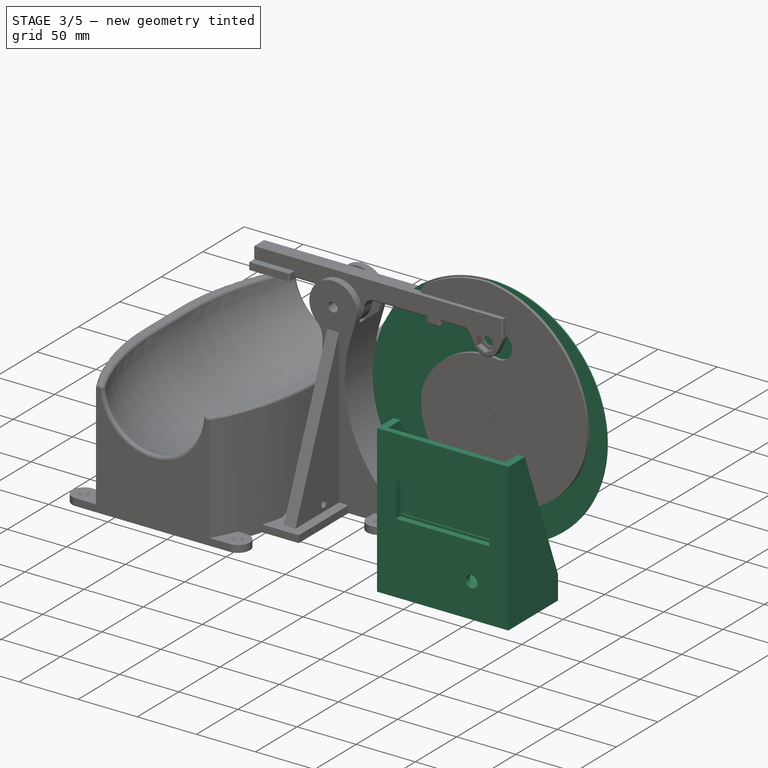
[diagram: stage 3 of 5 — iso view after this stage's code; geometry added in this stage tinted green]
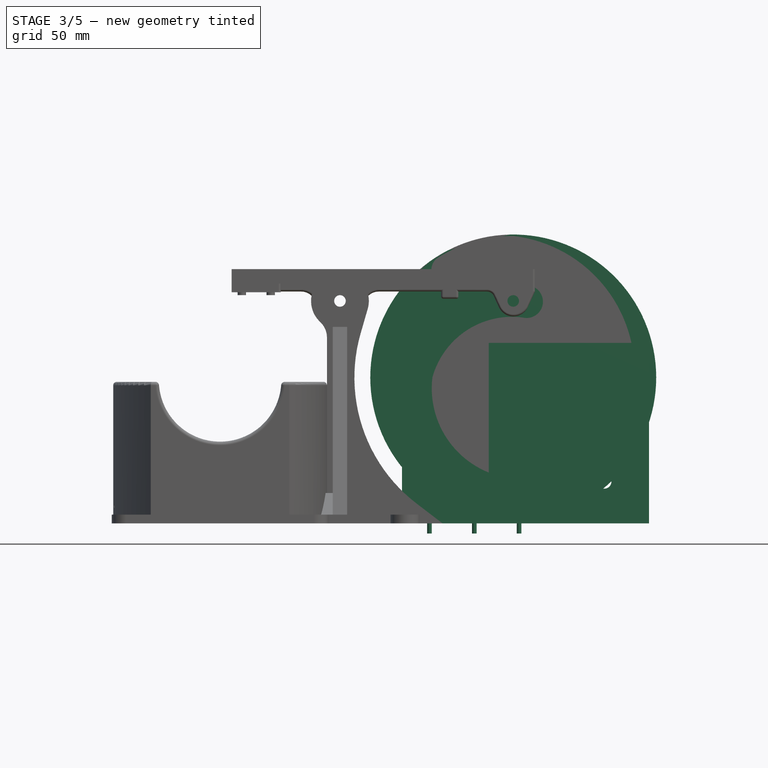
[diagram: stage 3 of 5 — front view after this stage's code; geometry added in this stage tinted green]
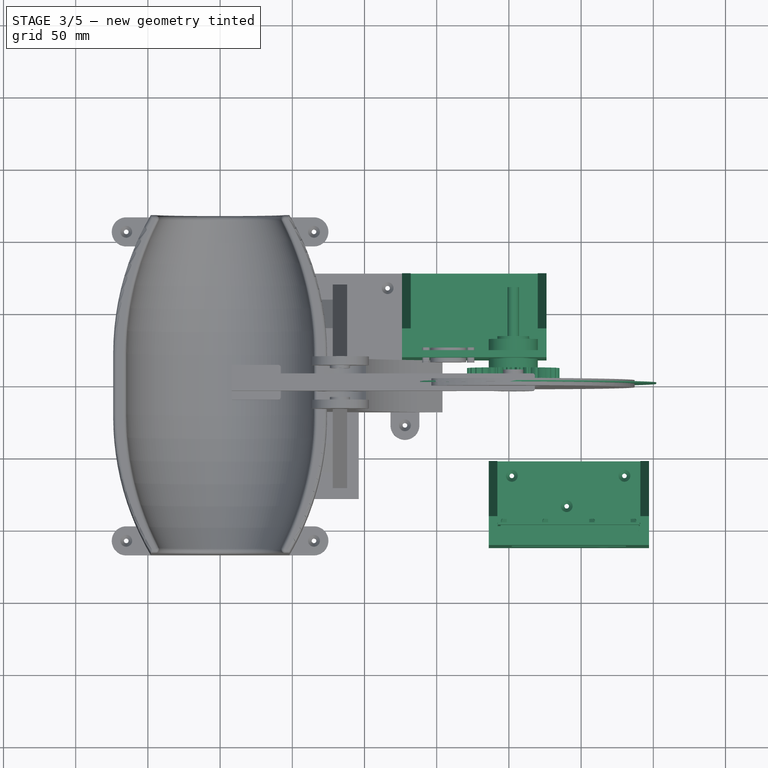
[diagram: stage 3 of 5 — top view after this stage's code; geometry added in this stage tinted green]
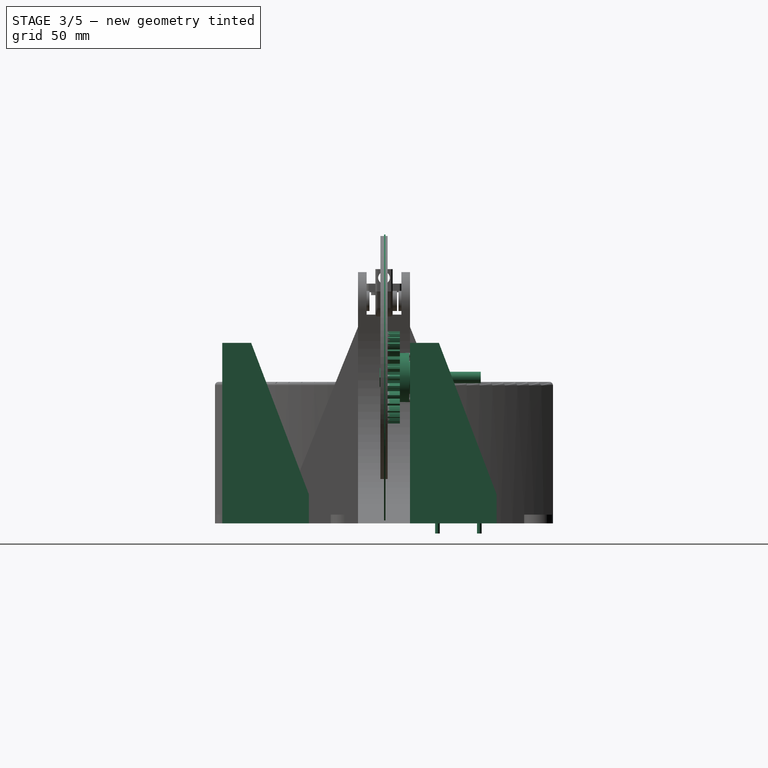
[diagram: stage 3 of 5 — right view after this stage's code; geometry added in this stage tinted green]
FEATURE [Part::FeaturePython] InvoluteGear001  # WARN: FeaturePython — macro-defined, semantics opaque (R4)
  Placement = pos=(203,2.5,2) rot=(-1,0,0;1.5708rad)
  backlash = 0
  beta = 0
  clearance = 0.25
  double_helix = false
  head = 0
  height = 8.5
  module = 2
  numpoints = 6
  pressure_angle = 20
  reversed_backlash = false
  shift = 0
  simple = false
  teeth = 30
  undercut = false
FEATURE [Part::Feature] Fusion003_solid005  label="608ZZ (Solid)005"
  Placement = pos=(203,26.5,2) rot=(-1,0,0;1.5708rad)
  shape: bbox 22 x 7 x 22 mm, 12 faces (baked)
FEATURE [Part::Feature] Fusion003_solid006  label="608ZZ (Solid)006"
  Placement = pos=(203,38.5,2) rot=(-1,0,0;1.5708rad)
  shape: bbox 22 x 7 x 22 mm, 12 faces (baked)
FEATURE [Part::Cylinder] Cylinder033  label="Cilindro033"
  Angle = 360
  AttacherType = Attacher::AttachEngine3D
  Height = 7
  Placement = pos=(203,14,2) rot=(-1,0,0;1.5708rad)
  Radius = 11
FEATURE [Part::Prism] Prism005  label="Prisma005"
  AttacherType = Attacher::AttachEngine3D
  Circumradius = 7.55
  Height = 6
  Polygon = 6
FEATURE [Part::Cylinder] Cylinder036  label="Cilindro036"
  Angle = 360
  AttacherType = Attacher::AttachEngine3D
  Height = 70
  Radius = 4
FEATURE [Part::MultiFuse] Fusion016  label="Tornillo_M009"
  Placement = pos=(203,-3,2) rot=(-1,0,0;1.5708rad)
  Refine = true
  Shapes = -> [Prism005,Cylinder036]
FEATURE [Part::Cylinder] Cylinder037  label="Cilindro037"
  Angle = 360
  AttacherType = Attacher::AttachEngine3D
  Height = 6.5
  Placement = pos=(203,11,2) rot=(-1,0,0;1.5708rad)
  Radius = 17
FEATURE [Part::Cylinder] Cylinder038  label="Cilindro038"
  Angle = 360
  AttacherType = Attacher::AttachEngine3D
  Height = 8
  Placement = pos=(203,23,2) rot=(-1,0,0;1.5708rad)
  Radius = 17
FEATURE [Part::Cylinder] Cylinder039  label="Cilindro039"
  Angle = 360
  AttacherType = Attacher::AttachEngine3D
  Height = 8
  Placement = pos=(203,12,2) rot=(-1,0,0;1.5708rad)
  Radius = 11
FEATURE [Part::Cylinder] Cylinder040  label="Cilindro040"
  Angle = 360
  AttacherType = Attacher::AttachEngine3D
  Height = 8
  Placement = pos=(203,25,2) rot=(-1,0,0;1.5708rad)
  Radius = 11
FEATURE [Part::Cylinder] Cylinder041  label="Cilindro041"
  Angle = 360
  AttacherType = Attacher::AttachEngine3D
  Height = 34
  Placement = pos=(203,8,2) rot=(-1,0,0;1.5708rad)
  Radius = 4
FEATURE [Sketcher::SketchObject] Sketch005
  Placement = pos=(126,0,0) rot=(0.57735,0.57735,0.57735;2.0944rad)
  sketch-geometry (5):
    g0: LineSegment StartX=18 StartY=26 StartZ=0 EndX=18 EndY=-99 EndZ=0
    g1: LineSegment StartX=18 StartY=-99 StartZ=0 EndX=78 EndY=-99 EndZ=0
    g2: LineSegment StartX=78 StartY=-99 StartZ=0 EndX=78 EndY=-79 EndZ=0
    g3: LineSegment StartX=78 StartY=-79 StartZ=0 EndX=38 EndY=26 EndZ=0
    g4: LineSegment StartX=38 StartY=26 StartZ=0 EndX=18 EndY=26 EndZ=0
  constraints (15):
    c: Vertical(g0)
    c: Coincident(g0,g1)
    c: Horizontal(g1)
    c: Coincident(g1,g2)
    c: Vertical(g2)
    c: Coincident(g2,g3)
    c: Coincident(g3,g4)
    c: Coincident(g4,g0)
    c: Horizontal(g4)
    c: DistanceY(g0,g0) = 125
    c: DistanceX(g1,g1) = 60
    c: DistanceY(g2,g2) = 20
    c: DistanceX(g4,g4) = 20
    c: DistanceY(g0,g-1) = 99
    c: DistanceX(g-1,g0) = 18
FEATURE [Part::Extrusion] Extrude005
  Base = -> Sketch005
  Dir = (1,-2e-16,2e-16)
  DirMode = 2
  FaceMakerClass = Part::FaceMakerBullseye
  LengthFwd = 100
  LengthRev = 0
  Solid = true
  Symmetric = false
FEATURE [Part::Box] Box010  label="Cubo009"
  AttacherType = Attacher::AttachEngine3D
  Height = 128
  Length = 88
  Placement = pos=(132,23,-93) rot=(0,0,1;0rad)
  Width = 60
FEATURE [Part::Cut] Cut010
  Base = -> Extrude005
  Refine = true
  Tool = -> Box010
FEATURE [Part::Cylinder] Cylinder042  label="Cilindro042"
  Angle = 360
  AttacherType = Attacher::AttachEngine3D
  Height = 1
  Placement = pos=(203,0,2) rot=(-1,0,0;1.5708rad)
  Radius = 99
FEATURE [Part::MultiFuse] Fusion030
  Placement = pos=(207,66,0) rot=(0,0,1;0rad)
  Refine = true
  Shapes = -> [Cylinder046,Cone]
FEATURE [Part::MultiFuse] Fusion031
  Placement = pos=(145,66,0) rot=(0,0,1;0rad)
  Refine = true
  Shapes = -> [Cylinder046,Cone]
FEATURE [Part::MultiFuse] Fusion032
  Placement = pos=(176,37,0) rot=(0,0,1;0rad)
  Refine = true
  Shapes = -> [Cylinder046,Cone]
FEATURE [Part::Feature] Solid014
  shape: bbox 89.2 x 31 x 3.7 mm, 6 faces (baked)
FEATURE [Part::Feature] Solid015
  shape: bbox 94.2 x 3.5 x 8.5 mm, 6 faces (baked)
FEATURE [Part::Feature] Solid016
  shape: bbox 94.2 x 3.5 x 8.5 mm, 6 faces (baked)
FEATURE [Part::Feature] Solid017 .. Solid024  x8 (patterned run collapsed; names and placements below)
  shape: bbox 4.031 x 4.031 x 2.6 mm, 7 faces (baked)
FEATURE [Part::Feature] Solid025
  shape: bbox 98.2 x 60.1 x 1.6 mm, 26 faces (baked)
FEATURE [Part::Feature] Solid026
  shape: bbox 78 x 28 x 1 mm, 6 faces (baked)
FEATURE [Part::Feature] Solid027
  shape: bbox 97 x 39.7 x 9.2 mm, 70 faces (baked)
FEATURE [Part::Compound2] Compound  label="lcd-4x20-backlight"
  Links = -> [Solid014,Solid015,Solid016,Solid017,Solid018,Solid019,Solid020,Solid021,Solid022,Solid023,Solid024,Solid025,Solid026,Solid027]
  Placement = pos=(241.4,-97.5,-24) rot=(1,0,0;1.5708rad)
FEATURE [Sketcher::SketchObject] Sketch013
  Placement = pos=(126,0,0) rot=(0.57735,0.57735,0.57735;2.0944rad)
  sketch-geometry (5):
    g0: LineSegment StartX=18 StartY=26 StartZ=0 EndX=18 EndY=-99 EndZ=0
    g1: LineSegment StartX=18 StartY=-99 StartZ=0 EndX=78 EndY=-99 EndZ=0
    g2: LineSegment StartX=78 StartY=-99 StartZ=0 EndX=78 EndY=-79 EndZ=0
    g3: LineSegment StartX=78 StartY=-79 StartZ=0 EndX=38 EndY=26 EndZ=0
    g4: LineSegment StartX=38 StartY=26 StartZ=0 EndX=18 EndY=26 EndZ=0
  constraints (15):
    c: Vertical(g0)
    c: Coincident(g0,g1)
    c: Horizontal(g1)
    c: Coincident(g1,g2)
    c: Vertical(g2)
    c: Coincident(g2,g3)
    c: Coincident(g3,g4)
    c: Coincident(g4,g0)
    c: Horizontal(g4)
    c: DistanceY(g0,g0) = 125
    c: DistanceX(g1,g1) = 60
    c: DistanceY(g2,g2) = 20
    c: DistanceX(g4,g4) = 20
    c: DistanceY(g0,g-1) = 99
    c: DistanceX(g-1,g0) = 18
FEATURE [Part::Extrusion] Extrude017
  Base = -> Sketch013
  Dir = (1,0,0)
  DirMode = 2
  FaceMakerClass = Part::FaceMakerBullseye
  LengthFwd = 111
  LengthRev = 0
  Solid = true
  Symmetric = false
FEATURE [Part::Box] Box013  label="Cubo012"
  AttacherType = Attacher::AttachEngine3D
  Height = 128
  Length = 99
  Placement = pos=(132,23,-93) rot=(0,0,1;0rad)
  Width = 60
FEATURE [Part::Cut] Cut016
  Base = -> Extrude017
  Placement = pos=(60,-130,0) rot=(0,0,1;0rad)
  Refine = true
  Tool = -> Box013
FEATURE [Part::Cone] Cone001  label="Cono001"
  Angle = 360
  AttacherType = Attacher::AttachEngine3D
  Height = 3
  Placement = pos=(0,0,-96) rot=(0,0,1;0rad)
  Radius1 = 1.6
  Radius2 = 4.1
FEATURE [Part::Cylinder] Cylinder056  label="Cilindro056"
  Angle = 360
  AttacherType = Attacher::AttachEngine3D
  Height = 10
  Placement = pos=(0,0,-106) rot=(0,0,1;0rad)
  Radius = 1.6
FEATURE [Part::MultiFuse] Fusion037
  Placement = pos=(202,-62,0) rot=(0,0,1;0rad)
  Refine = true
  Shapes = -> [Cylinder056,Cone001]
FEATURE [Part::MultiFuse] Fusion038
  Placement = pos=(240,-83,0) rot=(0,0,1;0rad)
  Refine = true
  Shapes = -> [Cylinder056,Cone001]
FEATURE [Part::MultiFuse] Fusion039
  Placement = pos=(280,-62,0) rot=(0,0,1;0rad)
  Refine = true
  Shapes = -> [Cylinder056,Cone001]
FEATURE [Part::Box] Box014  label="Cubo013"
  AttacherType = Attacher::AttachEngine3D
  Height = 29
  Length = 79
  Placement = pos=(202,-112,-39) rot=(0,0,1;0rad)
  Width = 10
FEATURE [Part::Box] Box015  label="Cubo014"
  AttacherType = Attacher::AttachEngine3D
  Height = 44
  Length = 3
  Placement = pos=(289,-96,-55) rot=(0,0,1;0rad)
  Width = 3
FEATURE [Part::Box] Box016  label="Cubo015"
  AttacherType = Attacher::AttachEngine3D
  Height = 44
  Length = 3
  Placement = pos=(191,-96,-55) rot=(0,0,1;0rad)
  Width = 3
FEATURE [Part::Box] Box017  label="Cubo016"
  AttacherType = Attacher::AttachEngine3D
  Height = 3
  Length = 101
  Placement = pos=(191,-108,-58) rot=(0,0,1;0rad)
  Width = 15
FEATURE [Part::MultiFuse] Fusion041
  Refine = true
  Shapes = -> [Cut016,Box015,Box016,Box017]
FEATURE [Part::Cylinder] Cylinder057  label="Cilindro057"
  Angle = 360
  AttacherType = Attacher::AttachEngine3D
  Height = 25
  Placement = pos=(266,-119,-70) rot=(-1,0,0;1.5708rad)
  Radius = 5
FEATURE [Part::MultiFuse] Fusion040
  Refine = true
  Shapes = -> [Box014,Fusion037,Fusion038,Fusion039,Cylinder057]
FEATURE [Part::Cut] Cut017  label="soporte_LCD"
  Base = -> Fusion041
  Refine = true
  Tool = -> Fusion040
FEATURE [Part::MultiFuse] Fusion052
  Refine = true
  Shapes = -> [Cylinder062,Cylinder059,Cylinder060,Prism006,Prism007,Cylinder061,Cylinder043,Cut012,Extrude023,Fusion029,Fusion028]
FEATURE [Part::Cut] Cut020  label="soporte_eje"
  Base = -> Fusion053
  Refine = true
  Tool = -> Fusion052
FEATURE [Part::MultiFuse] Fusion018
  Refine = true
  Shapes = -> [Cylinder037,InvoluteGear001,Extrude035]
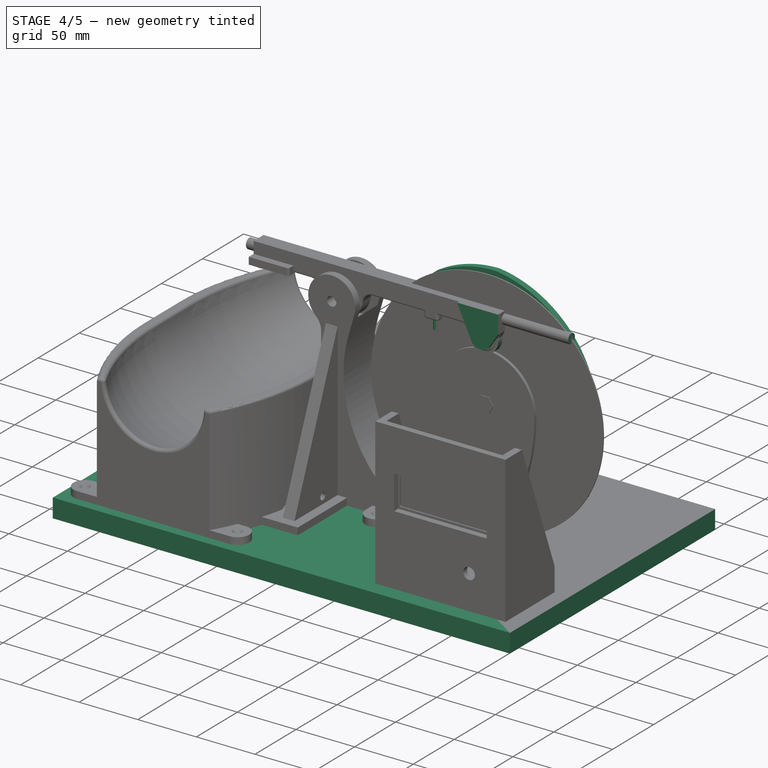
[diagram: stage 4 of 5 — iso view after this stage's code; geometry added in this stage tinted green]
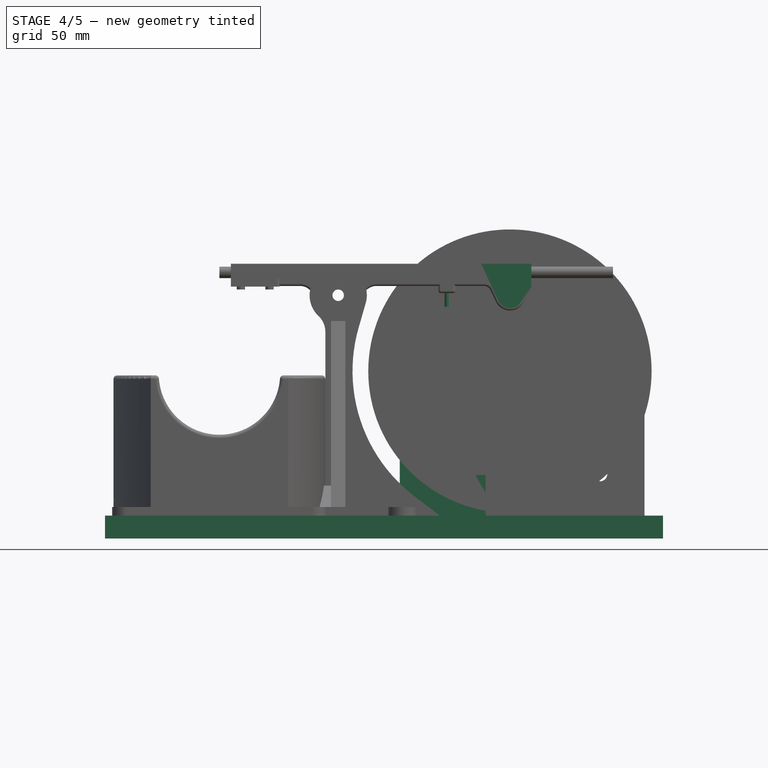
[diagram: stage 4 of 5 — front view after this stage's code; geometry added in this stage tinted green]
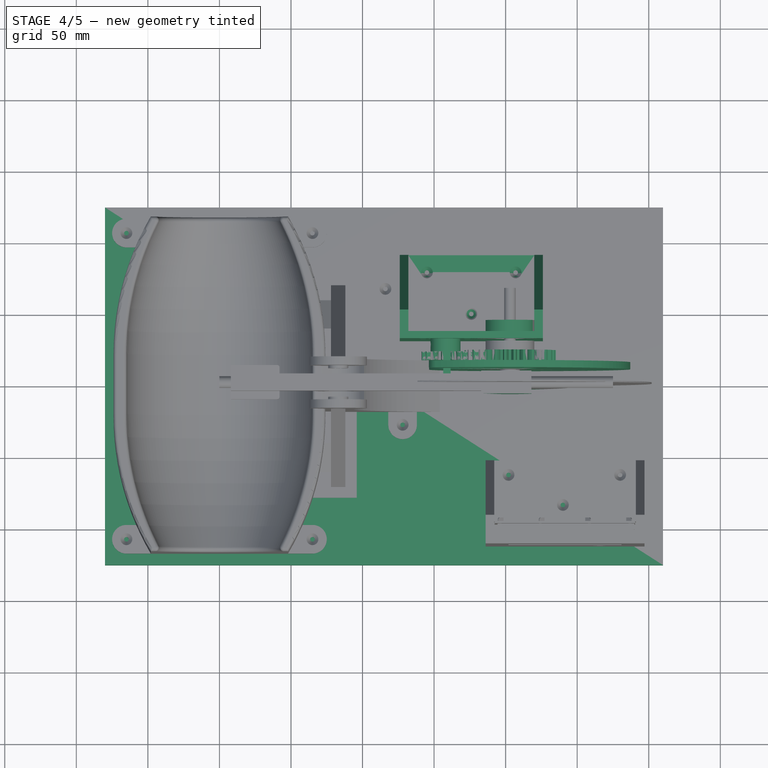
[diagram: stage 4 of 5 — top view after this stage's code; geometry added in this stage tinted green]
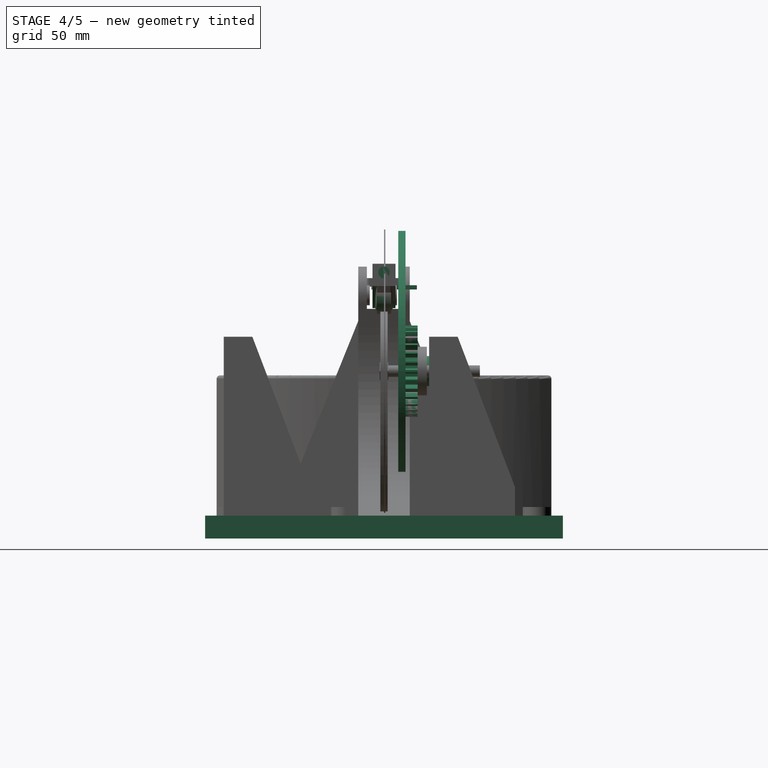
[diagram: stage 4 of 5 — right view after this stage's code; geometry added in this stage tinted green]
FEATURE [Part::Feature] Fusion003_solid  label="608ZZ (Solid)"
  shape: bbox 22 x 22 x 7 mm, 12 faces (baked)
FEATURE [Part::Feature] Fusion003_solid002  label="608ZZ (Solid)002"
  Placement = pos=(83,3,55) rot=(-1,0,0;1.5708rad)
  shape: bbox 22 x 7 x 22 mm, 12 faces (baked)
FEATURE [Part::Feature] Fusion003_solid003  label="608ZZ (Solid)003"
  Placement = pos=(203,16,55) rot=(1,0,0;1.5708rad)
  shape: bbox 22 x 7 x 22 mm, 12 faces (baked)
FEATURE [Part::Feature] Fusion003_solid004  label="608ZZ (Solid)004"
  Placement = pos=(83,-10,55) rot=(-1,0,0;1.5708rad)
  shape: bbox 22 x 7 x 22 mm, 12 faces (baked)
FEATURE [Part::Cylinder] Cylinder013  label="Cilindro013"
  Angle = 360
  AttacherType = Attacher::AttachEngine3D
  Height = 10
  Placement = pos=(203,5,55) rot=(1,0,0;1.5708rad)
  Radius = 13
FEATURE [Part::Cylinder] Cylinder016  label="Cilindro016"
  Angle = 360
  AttacherType = Attacher::AttachEngine3D
  Height = 2
  Placement = pos=(203,5.5,55) rot=(1,0,0;1.5708rad)
  Radius = 7
FEATURE [Part::Cylinder] Cylinder017  label="Cilindro017"
  Angle = 360
  AttacherType = Attacher::AttachEngine3D
  Height = 2
  Placement = pos=(203,-3.5,55) rot=(1,0,0;1.5708rad)
  Radius = 7
FEATURE [Sketcher::SketchObject] Sketch002
  Placement = pos=(0,0,0) rot=(1,0,0;1.5708rad)
  sketch-geometry (7):
    g0: ArcOfCircle CenterX=203 CenterY=55 CenterZ=0 NormalX=0 NormalY=0 NormalZ=1 AngleXU=0 Radius=9 StartAngle=3.57188 EndAngle=5.7043
    g1: LineSegment StartX=203 StartY=77 StartZ=0 EndX=218 EndY=77 EndZ=0
    g2: LineSegment StartX=183 StartY=77 StartZ=0 EndX=194.82 EndY=51.2458 EndZ=0
    g3: LineSegment StartX=183 StartY=77 StartZ=0 EndX=203 EndY=77 EndZ=0
    g4: LineSegment [constr] StartX=203 StartY=77 StartZ=0 EndX=203 EndY=55 EndZ=0
    g5: LineSegment StartX=218 StartY=61.5 StartZ=0 EndX=218 EndY=77 EndZ=0
    g6: LineSegment StartX=210.534 StartY=50.0762 StartZ=0 EndX=218 EndY=61.5 EndZ=0
  constraints (19):
    c: Horizontal(g3)
    c: Coincident(g1,g3)
    c: Coincident(g2,g3)
    c: Tangent(g0,g2) = -1.5708
    c: Coincident(g4,g1)
    c: DistanceY(g-1,g1) = 77
    c: DistanceX(g-1,g0) = 203
    c: Radius(g0) = 9
    c: DistanceY(g4,g4) = 22
    c: Coincident(g4,g0)
    c: Horizontal(g1)
    c: Coincident(g5,g6)
    c: Vertical(g5)
    c: Tangent(g0,g6) = -1.5708
    c: Coincident(g5,g1)
    c: Vertical(g4)
    c: DistanceY(g5,g5) = 15.5
    c: DistanceX(g1,g1) = 15
    c: DistanceX(g3,g3) = 20
FEATURE [Part::Extrusion] Extrude002
  Base = -> Sketch002
  Dir = (0,-1,1.1e-15)
  DirMode = 2
  FaceMakerClass = Part::FaceMakerBullseye
  LengthFwd = 8
  LengthRev = 8
  Solid = true
  Symmetric = false
FEATURE [Part::MultiFuse] Fusion004
  Refine = true
  Shapes = -> [Cylinder016,Cylinder017]
FEATURE [Part::Cut] Cut005
  Base = -> Cylinder013
  Refine = true
  Tool = -> Fusion004
FEATURE [Part::Cylinder] Cylinder018  label="Cilindro018"
  Angle = 360
  AttacherType = Attacher::AttachEngine3D
  Height = 2
  Placement = pos=(35,6,61) rot=(1,0,0;3.14159rad)
  Radius = 2.9
FEATURE [Part::Cylinder] Cylinder019  label="Cilindro019"
  Angle = 360
  AttacherType = Attacher::AttachEngine3D
  Height = 2
  Placement = pos=(15,-6,61) rot=(1,0,0;3.14159rad)
  Radius = 2.9
FEATURE [Part::Box] Box004  label="Cubo004"
  AttacherType = Attacher::AttachEngine3D
  Height = 3
  Length = 23
  Placement = pos=(0,-2.6,0) rot=(-1,0,0;0rad)
  Width = 5.2
FEATURE [Part::Cylinder] Cylinder023  label="Cilindro023"
  Angle = 360
  AttacherType = Attacher::AttachEngine3D
  Height = 21
  Placement = pos=(0,0,-6) rot=(-1,0,0;0rad)
  Radius = 1.7
FEATURE [Part::Prism] Prism001  label="Prisma001"
  AttacherType = Attacher::AttachEngine3D
  Circumradius = 3
  Height = 3
  Polygon = 6
FEATURE [Part::MultiFuse] Fusion007  label="hueco_tornillo001"
  Placement = pos=(159,-1.38e-13,62) rot=(0.707107,0.707107,0;3.14159rad)
  Refine = true
  Shapes = -> [Prism001,Cylinder023,Box004]
FEATURE [Sketcher::SketchObject] Sketch003
  Placement = pos=(0,0,0) rot=(0.57735,0.57735,0.57735;2.0944rad)
  sketch-geometry (6):
    g0: ArcOfCircle CenterX=0 CenterY=0 CenterZ=0 NormalX=0 NormalY=0 NormalZ=1 AngleXU=0 Radius=4.05 StartAngle=5.58505 EndAngle=10.1229
    g1: LineSegment StartX=-3.10248 StartY=-2.60329 StartZ=0 EndX=-1.88855 EndY=-4.05 EndZ=0
    g2: LineSegment StartX=3.10248 StartY=-2.60329 StartZ=0 EndX=1.88855 EndY=-4.05 EndZ=0
    g3: LineSegment StartX=-1.88855 StartY=-4.05 StartZ=0 EndX=0 EndY=-4.05 EndZ=0
    g4: LineSegment StartX=0 StartY=-4.05 StartZ=0 EndX=1.88855 EndY=-4.05 EndZ=0
    g5: LineSegment [constr] StartX=0 StartY=0 StartZ=0 EndX=0 EndY=-4.05 EndZ=0
  constraints (15):
    c: Horizontal(g3)
    c: Horizontal(g4)
    c: Coincident(g3,g4)
    c: Equal(g3,g4)
    c: Coincident(g1,g3)
    c: Coincident(g2,g4)
    c: Tangent(g0,g1) = -1.5708
    c: Tangent(g0,g2) = 1.5708
    c: Coincident(g5,g0)
    c: Coincident(g5,g3)
    c: Vertical(g5)
    c: Radius(g0) = 4.05
    c: DistanceY(g5,g5) = 4.05
    c: Angle(g2,g1) = 1.39626
    c: Coincident(g0,g-1)
FEATURE [Part::Extrusion] Extrude003
  Base = -> Sketch003
  Dir = (1,0,0)
  DirMode = 2
  FaceMakerClass = Part::FaceMakerBullseye
  LengthFwd = 275
  LengthRev = 0
  Placement = pos=(0,0,71) rot=(0,0,1;0rad)
  Solid = true
  Symmetric = false
FEATURE [Sketcher::SketchObject] Sketch004
  Placement = pos=(0,0,0) rot=(1,0,0;1.5708rad)
  sketch-geometry (5):
    g0: ArcOfCircle CenterX=0 CenterY=0 CenterZ=0 NormalX=0 NormalY=0 NormalZ=1 AngleXU=0 Radius=42 StartAngle=0.00602413 EndAngle=3.13557
    g1: ArcOfCircle CenterX=111.998 CenterY=-0.674699 CenterZ=0 NormalX=0 NormalY=0 NormalZ=1 AngleXU=0 Radius=154 StartAngle=3.13557 EndAngle=3.77546
    g2: ArcOfCircle CenterX=-111.998 CenterY=-0.674699 CenterZ=0 NormalX=0 NormalY=0 NormalZ=1 AngleXU=0 Radius=154 StartAngle=5.64931 EndAngle=6.28921
    g3: ArcOfCircle CenterX=0 CenterY=-83 CenterZ=0 NormalX=0 NormalY=0 NormalZ=1 AngleXU=0 Radius=15 StartAngle=3.77546 EndAngle=5.64931
    g4: LineSegment [constr] StartX=0 StartY=0 StartZ=0 EndX=0 EndY=-83 EndZ=0
  constraints (14):
    c: Coincident(g3,g4)
    c: Coincident(g0,g4)
    c: Tangent(g0,g1) = -1.5708
    c: Tangent(g0,g2) = -1.5708
    c: Equal(g2,g1)
    c: Tangent(g3,g1) = -1.5708
    c: Tangent(g2,g3) = -1.5708
    c: Radius(g0) = 42
    c: Radius(g3) = 15
    c: DistanceX(g-1,g0) = 0
    c: DistanceY(g-1,g0) = 0
    c: Distance(g4) = 83
    c: Radius(g1) = 154
    c: Vertical(g4)
FEATURE [Part::Extrusion] Extrude004
  Base = -> Sketch004
  Dir = (0,-1,3e-16)
  DirMode = 2
  FaceMakerClass = Part::FaceMakerBullseye
  LengthFwd = 5
  LengthRev = 0
  Placement = pos=(203,2.5,2) rot=(0,0,1;0rad)
  Solid = true
  Symmetric = false
FEATURE [Part::FeaturePython] InvoluteGear  # WARN: FeaturePython — macro-defined, semantics opaque (R4)
  Placement = pos=(158,3,2) rot=(-1,0,0;1.5708rad)
  backlash = 0
  beta = 0
  clearance = 0.25
  double_helix = false
  head = 0
  height = 6
  module = 2
  numpoints = 6
  pressure_angle = 20
  reversed_backlash = false
  shift = 0
  simple = false
  teeth = 15
  undercut = false
FEATURE [Part::Feature] Solid013  label="Nema-17-motor-40mm-final"
  Placement = pos=(158,76.5,2) rot=(1,0,0;1.5708rad)
  shape: bbox 42.3 x 60.1 x 42.3 mm, 55 faces (baked)
FEATURE [Part::Box] Box005  label="base"
  AttacherType = Attacher::AttachEngine3D
  Height = 16
  Length = 390
  Placement = pos=(-80,-125,-115) rot=(0,0,1;0rad)
  Width = 250
FEATURE [Part::Cylinder] Cylinder  label="Cilindro"
  Angle = 360
  AttacherType = Attacher::AttachEngine3D
  Height = 35
  Placement = pos=(158,24,2) rot=(1,0,0;1.5708rad)
  Radius = 2.5
FEATURE [Part::Cylinder] Cylinder024  label="Cilindro024"
  Angle = 360
  AttacherType = Attacher::AttachEngine3D
  Height = 11
  Placement = pos=(158,20,2) rot=(1,0,0;1.5708rad)
  Radius = 10.5
FEATURE [Part::Cylinder] Cylinder025  label="Cilindro025"
  Angle = 360
  AttacherType = Attacher::AttachEngine3D
  Height = 21
  Placement = pos=(0,0,-6) rot=(-1,0,0;0rad)
  Radius = 1.7
FEATURE [Part::Prism] Prism002  label="Prisma002"
  AttacherType = Attacher::AttachEngine3D
  Circumradius = 3
  Height = 3
  Polygon = 6
FEATURE [Part::Box] Box006  label="Cubo005"
  AttacherType = Attacher::AttachEngine3D
  Height = 3
  Length = 23
  Placement = pos=(0,-2.6,0) rot=(-1,0,0;0rad)
  Width = 5.2
FEATURE [Part::MultiFuse] Fusion008  label="hueco_tornillo002"
  Placement = pos=(159,-1.38e-13,62) rot=(0.707107,0.707107,0;3.14159rad)
  Refine = true
  Shapes = -> [Prism002,Cylinder025,Box006]
FEATURE [Part::Prism] Prism003  label="Prisma003"
  AttacherType = Attacher::AttachEngine3D
  Circumradius = 3
  Height = 3
  Polygon = 6
FEATURE [Part::Cylinder] Cylinder026  label="Cilindro026"
  Angle = 360
  AttacherType = Attacher::AttachEngine3D
  Height = 20
  Placement = pos=(0,0,-5) rot=(-1,0,0;0rad)
  Radius = 1.7
FEATURE [Part::Box] Box007  label="Cubo006"
  AttacherType = Attacher::AttachEngine3D
  Height = 3
  Length = 23
  Placement = pos=(0,-2.6,0) rot=(-1,0,0;0rad)
  Width = 5.2
FEATURE [Part::MultiFuse] Fusion009  label="hueco_tornillo003"
  Placement = pos=(154,14,2) rot=(0.57735,0.57735,-0.57735;4.18879rad)
  Refine = true
  Shapes = -> [Prism003,Cylinder026,Box007]
FEATURE [Part::MultiFuse] Fusion010
  Refine = true
  Shapes = -> [InvoluteGear,Cylinder024]
FEATURE [Part::MultiFuse] Fusion011
  Refine = true
  Shapes = -> [Fusion009,Cylinder]
FEATURE [Part::Cut] Cut007  label="engranaje_peque"
  Base = -> Fusion010
  Placement = pos=(0,13.5,0) rot=(0,0,1;0rad)
  Refine = true
  Tool = -> Fusion011
FEATURE [Part::Prism] Prism004  label="Prisma004"
  AttacherType = Attacher::AttachEngine3D
  Circumradius = 7.19
  Height = 6
  Polygon = 6
FEATURE [Part::Cylinder] Cylinder032  label="Cilindro032"
  Angle = 360
  AttacherType = Attacher::AttachEngine3D
  Height = 70
  Radius = 4
FEATURE [Part::MultiFuse] Fusion014  label="Tornillo_M8"
  Placement = pos=(203,-3,2) rot=(-1,0,0;1.5708rad)
  Refine = true
  Shapes = -> [Prism004,Cylinder032]
FEATURE [Part::MultiFuse] Fusion017
  Refine = true
  Shapes = -> [Cylinder033,Fusion016]
FEATURE [Part::MultiFuse] Fusion013
  Refine = true
  Shapes = -> [Cylinder038,Cut010]
FEATURE [Part::MultiFuse] Fusion012
  Refine = true
  Shapes = -> [Cylinder039,Cylinder040,Cylinder041,Fusion030,Fusion031,Fusion032,Extrude031]
FEATURE [Part::Cut] Cut008  label="soporte_motor"
  Base = -> Fusion013
  Placement = pos=(0,13.5,0) rot=(0,0,1;0rad)
  Refine = true
  Tool = -> Fusion012
FEATURE [Part::Cut] Cut009  label="leva001"
  Base = -> Fusion018
  Placement = pos=(0,12.5,0) rot=(0,0,1;0rad)
  Refine = true
  Tool = -> Fusion017
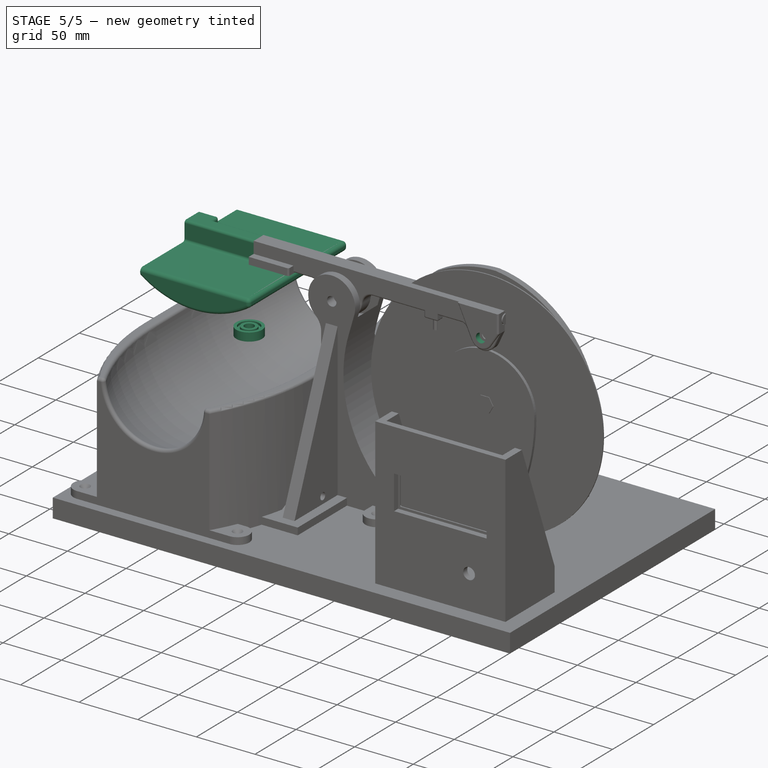
[diagram: stage 5 of 5 — iso view after this stage's code; geometry added in this stage tinted green]
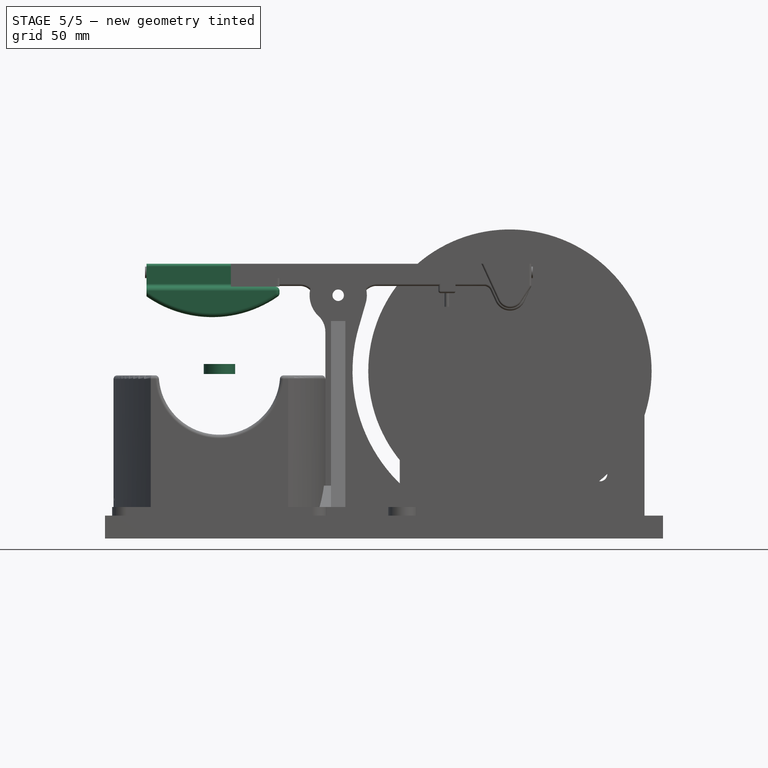
[diagram: stage 5 of 5 — front view after this stage's code; geometry added in this stage tinted green]
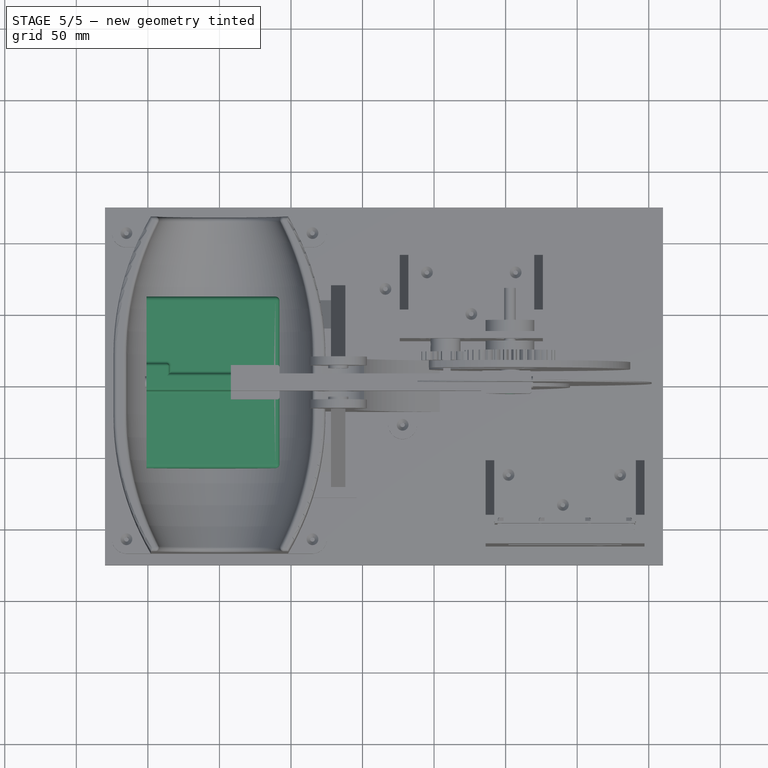
[diagram: stage 5 of 5 — top view after this stage's code; geometry added in this stage tinted green]
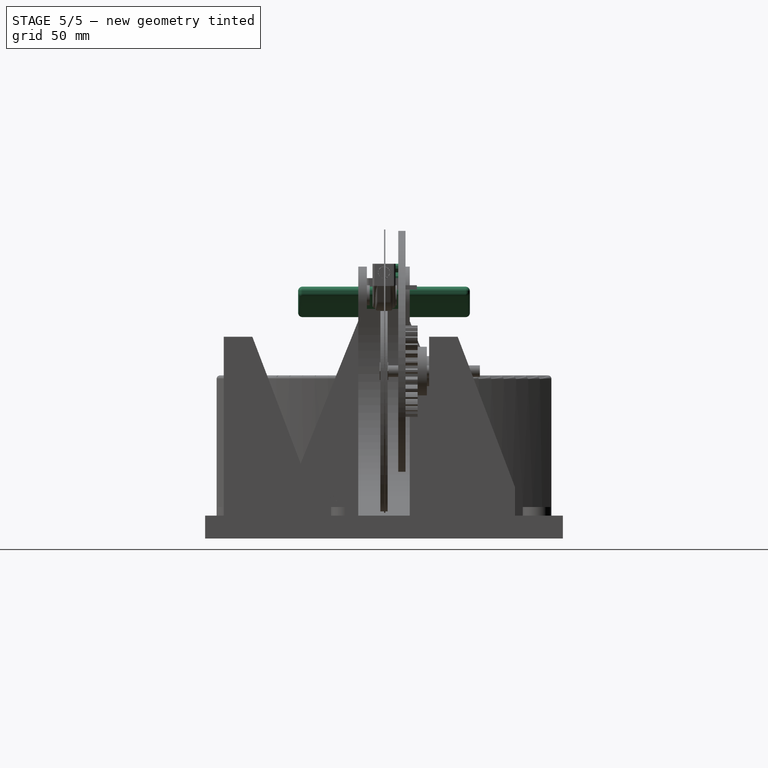
[diagram: stage 5 of 5 — right view after this stage's code; geometry added in this stage tinted green]
FEATURE [Part::Feature] Solid  label="Base_23"
  shape: bbox 216.7 x 161 x 257.5 mm, 136 faces (baked)
FEATURE [Part::Feature] Solid001  label="bearing_625zz_0"
  Placement = pos=(3.9e-14,34.9831,37.0263) rot=(0,0,1;0rad)
  shape: bbox 5 x 17.32 x 17.32 mm, 20 faces (baked)
FEATURE [Part::Feature] Solid002  label="palanca-CNC-LASER"
  shape: bbox 270 x 3 x 40 mm, 18 faces (baked)
FEATURE [Part::Feature] Solid003  label="AR M5"
  shape: bbox 10 x 1 x 10 mm, 4 faces (baked)
FEATURE [Part::Feature] Solid004  label="empujador"
  Placement = pos=(2.5,-135.221,157.27) rot=(-0.294716,0.294716,0.909002;1.66606rad)
  shape: bbox 120 x 88.26 x 71.91 mm, 15 faces (baked)
FEATURE [Part::Feature] Solid005  label="item_8_0_004_12_biq41gv2ypkypls4gfckj5y0b"
  shape: bbox 9.2 x 25 x 9.2 mm, 15 faces (baked)
FEATURE [Part::Feature] Solid006  label="tuerca_din934_m5-10"
  shape: bbox 9.24 x 9.24 x 4.002 mm, 13 faces (baked)
FEATURE [Part::Feature] Solid007  label="separador-eje-principal"
  Placement = pos=(-1,-68.0559,99.3398) rot=(-0.473707,0.473707,0.74243;1.86431rad)
  shape: bbox 7 x 20 x 20 mm, 4 faces (baked)
FEATURE [App::Link] Link  label="palanca-CNC-LASER001"
  ElementCount = 2
  LinkedObject = -> Solid002
  PlacementList = 2 placements: [(-2.5,-68.0559,99.3398),(7.5,-68.0559,99.3398)]
  ScaleList = (2) [(1,1,1),(1,1,1)]
  ShowElement = false
FEATURE [App::Link] Link001  label="AR M006"
  ElementCount = 6
  LinkedObject = -> Solid003
  PlacementList = 6 placements: [(5.5,34.9831,37.0263),(-0.5,34.9831,37.0263),(9.5,34.9831,37.0263),(-4.5,34.9831,37.0263),(-4.5,-100.177,136.816),(-4.5,-160.909,180.823)]
  ScaleList = (6) [(1,1,1),(1,1,1),(1,1,1),(1,1,1),(1,1,1),(1,1,1)]
  ShowElement = false
FEATURE [App::Link] Link002  label="item_8_0_004_12_biq41gv2ypkypls4gfckj5y0b001"
  ElementCount = 3
  LinkedObject = -> Solid005
  PlacementList = 3 placements: [(9,34.9831,37.0263),(10,-100.177,136.816),(10,-160.909,180.823)]
  ScaleList = (3) [(1,1,1),(1,1,1),(1,1,1)]
  ShowElement = false
FEATURE [App::Link] Link003  label="tuerca_din934_m5-011"
  ElementCount = 5
  LinkedObject = -> Solid006
  PlacementList = 5 placements: [(-9,-160.909,180.823),(1.79583e-14,-100.177,136.816),(-9,-100.177,136.816),(3.03577e-14,34.9831,37.0263),(-9,34.9831,37.0263)]
  ScaleList = (5) [(1,1,1),(1,1,1),(1,1,1),(1,1,1),(1,1,1)]
  ShowElement = false
FEATURE [App::LinkGroup] LinkGroup  label="conjunto"
  ElementList = -> [Solid001,Link,Link001,Solid004,Link002,Link003,Solid007]
  LinkMode = 0
  Placement = pos=(198.182,25.7586,-9.9e-15) rot=(-0.407064,-0.817679,-0.407064;1.77074rad)
FEATURE [Part::Feature] Solid008  label="balloon"
  Placement = pos=(-2.8e-14,1.5e-14,145.866) rot=(-0.287331,0.677289,-0.677289;2.58201rad)
  shape: bbox 128 x 128 x 291.7 mm, 8 faces (baked)
FEATURE [Part::Feature] Solid009  label="NEMA23 57BYGH627"
  Placement = pos=(203.817,25.8893,-7) rot=(0,0,1;0rad)
  shape: bbox 57.58 x 64.49 x 97.01 mm, 394 faces (baked)
FEATURE [Part::Feature] Solid010  label="Pieza15"
  shape: bbox 315.4 x 3 x 160.4 mm, 20 faces (baked)
FEATURE [Part::Feature] Solid011  label="leva"
  Placement = pos=(203.817,25.8893,-1) rot=(0.09259,0.704069,-0.704069;3.32625rad)
  shape: bbox 88.34 x 138.1 x 3 mm, 7 faces (baked)
FEATURE [Part::Feature] Solid012  label="soporte-globo"
  Placement = pos=(6.9e-14,-9.7e-14,2.5) rot=(-1,0,0;1.5708rad)
  shape: bbox 232.4 x 73.06 x 240 mm, 57 faces (baked)
FEATURE [App::Link] Link004  label="Pieza016"
  ElementCount = 2
  LinkedObject = -> Solid010
  PlacementList = 2 placements: [(-1.14481,-1.39906,-7),(-1.14481,-1.39906,9)]
  ScaleList = (2) [(1,1,1),(1,1,1)]
  ShowElement = false
FEATURE [App::LinkGroup] LinkGroup001  label="ConjuntoCompleto"
  ElementList = -> [Solid,LinkGroup,Solid008,Solid009,Link004,Solid011,Solid012]
  LinkMode = 0
  Placement = pos=(-3.8147e-06,5.4195,-4.68793) rot=(1,0,0;1.5708rad)
FEATURE [Sketcher::SketchObject] Sketch
  Placement = pos=(0,0,0) rot=(1,0,0;1.5708rad)
  sketch-geometry (5):
    g0: LineSegment StartX=-51 StartY=61 StartZ=0 EndX=42 EndY=61 EndZ=0
    g1: LineSegment StartX=42 StartY=61 StartZ=0 EndX=42 EndY=55 EndZ=0
    g2: LineSegment [constr] StartX=0 StartY=0 StartZ=0 EndX=-93 EndY=-8.9e-15 EndZ=0
    g3: ArcOfCircle CenterX=-5.01306 CenterY=119.728 CenterZ=0 NormalX=0 NormalY=0 NormalZ=1 AngleXU=0 Radius=80 StartAngle=4.09998 EndAngle=5.34056
    g4: LineSegment StartX=-51 StartY=61 StartZ=0 EndX=-51 EndY=54.267 EndZ=0
  constraints (16):
    c: Coincident(g0,g1)
    c: Distance(g0) = 93
    c: Distance(g1) = 6
    c: Angle(g0,g1) = 1.5708
    c: DistanceY(g-1,g1) = 55
    c: DistanceX(g-1,g1) = 42
    c: Coincident(g2,g-1)
    c: Equal(g2,g0)
    c: Parallel(g0,g2)
    c: Angle(g2,g-1) = 3.14159
    c: Coincident(g3,g1)
    c: Radius(g3) = 80
    c: Coincident(g4,g0)
    c: Angle(g4,g0) = 1.5708
    c: DistanceY(g4,g4) = 6.733
    c: Coincident(g3,g4)
FEATURE [Part::Extrusion] Extrude
  Base = -> Sketch
  Dir = (0,-1,1.3e-15)
  DirMode = 2
  FaceMakerClass = Part::FaceMakerBullseye
  LengthFwd = 60
  LengthRev = 60
  Solid = true
  Symmetric = false
FEATURE [Part::Box] Box  label="Cubo"
  AttacherType = Attacher::AttachEngine3D
  Height = 16
  Length = 16
  Placement = pos=(-51,-6,61) rot=(0,0,1;0rad)
  Width = 19
FEATURE [Part::Box] Box001  label="Cubo001"
  AttacherType = Attacher::AttachEngine3D
  Height = 6
  Length = 34
  Placement = pos=(8,-12,61) rot=(0,0,1;0rad)
  Width = 24
FEATURE [Sketcher::SketchObject] Sketch001
  Placement = pos=(0,0,0) rot=(1,0,0;1.5708rad)
  sketch-geometry (12):
    g0: LineSegment StartX=8 StartY=77 StartZ=0 EndX=218 EndY=77 EndZ=0
    g1: LineSegment StartX=218 StartY=77 StartZ=0 EndX=218 EndY=61.5 EndZ=0
    g2: ArcOfCircle CenterX=83 CenterY=55 CenterZ=0 NormalX=0 NormalY=0 NormalZ=1 AngleXU=0 Radius=17 StartAngle=3.27159 EndAngle=6.15319
    g3: ArcOfCircle CenterX=109.772 CenterY=51.5 CenterZ=0 NormalX=0 NormalY=0 NormalZ=1 AngleXU=0 Radius=10 StartAngle=1.5708 EndAngle=3.0116
    g4: LineSegment StartX=109.772 StartY=61.5 StartZ=0 EndX=153 EndY=61.5 EndZ=0
    g5: LineSegment StartX=8 StartY=77 StartZ=0 EndX=8 EndY=61.5 EndZ=0
    g6: LineSegment StartX=8 StartY=61.5 StartZ=0 EndX=56.2278 EndY=61.5 EndZ=0
    g7: ArcOfCircle CenterX=56.2278 CenterY=51.5 CenterZ=0 NormalX=0 NormalY=0 NormalZ=1 AngleXU=0 Radius=10 StartAngle=0.129995 EndAngle=1.5708
    g8: LineSegment StartX=153 StartY=61.5 StartZ=0 EndX=153 EndY=56.5 EndZ=0
    g9: LineSegment StartX=153 StartY=56.5 StartZ=0 EndX=165 EndY=56.5 EndZ=0
    g10: LineSegment StartX=165 StartY=56.5 StartZ=0 EndX=165 EndY=61.5 EndZ=0
    g11: LineSegment StartX=165 StartY=61.5 StartZ=0 EndX=218 EndY=61.5 EndZ=0
  constraints (34):
    c: Horizontal(g0)
    c: Coincident(g0,g1)
    c: Vertical(g1)
    c: Tangent(g3,g4) = 1.5708
    c: Tangent(g2,g3) = 1.5708
    c: Vertical(g5)
    c: Coincident(g5,g6)
    c: Horizontal(g6)
    c: Coincident(g0,g5)
    c: DistanceY(g-1,g5) = 61.5
    c: DistanceY(g5,g5) = 15.5
    c: DistanceY(g2,g0) = 22
    c: Radius(g3) = 10
    c: Tangent(g6,g7) = 1.5708
    c: Equal(g7,g3)
    c: Tangent(g7,g2) = 1.5708
    c: Radius(g2) = 17
    c: DistanceX(g0,g0) = 210
    c: DistanceX(g-1,g5) = 8
    c: DistanceX(g0,g2) = 75
    c: Horizontal(g3,g6)
    c: Horizontal(g4)
    c: Coincident(g1,g11)
    c: Vertical(g8)
    c: Coincident(g8,g9)
    c: Horizontal(g9)
    c: Coincident(g9,g10)
    c: Vertical(g10)
    c: DistanceX(g9,g9) = 12
    c: DistanceX(g9,g1) = 53
    c: Coincident(g4,g8)
    c: Coincident(g11,g10)
    c: Tangent(g4,g11)
    c: DistanceY(g8,g8) = 5
FEATURE [Part::Extrusion] Extrude001
  Base = -> Sketch001
  Dir = (0,-1,3e-16)
  DirMode = 2
  FaceMakerClass = Part::FaceMakerBullseye
  LengthFwd = 6
  LengthRev = 6
  Solid = true
  Symmetric = false
FEATURE [Part::Cylinder] Cylinder001  label="Cilindro001"
  Angle = 360
  AttacherType = Attacher::AttachEngine3D
  Height = 10
  Placement = pos=(83,-3,55) rot=(1,0,0;1.5708rad)
  Radius = 11
FEATURE [Part::Cylinder] Cylinder002  label="Cilindro002"
  Angle = 360
  AttacherType = Attacher::AttachEngine3D
  Height = 10
  Placement = pos=(83,3,55) rot=(-1,0,0;1.5708rad)
  Radius = 11
FEATURE [Part::Cylinder] Cylinder003  label="Cilindro003"
  Angle = 360
  AttacherType = Attacher::AttachEngine3D
  Height = 28
  Placement = pos=(83,-14,55) rot=(-1,0,0;1.5708rad)
  Radius = 8
FEATURE [Part::Cylinder] Cylinder004  label="Cilindro004"
  Angle = 360
  AttacherType = Attacher::AttachEngine3D
  Height = 10
  Placement = pos=(83,-3,55) rot=(1,0,0;1.5708rad)
  Radius = 11
FEATURE [Part::Cylinder] Cylinder005  label="barra refuerzo"
  Angle = 360
  AttacherType = Attacher::AttachEngine3D
  Height = 271
  Placement = pos=(-52,0,71) rot=(0,1,0;1.5708rad)
  Radius = 4
FEATURE [Part::Cylinder] Cylinder006  label="Cilindro006"
  Angle = 360
  AttacherType = Attacher::AttachEngine3D
  Height = 270
  Placement = pos=(-51,0,71) rot=(0,1,0;1.5708rad)
  Radius = 4.05
FEATURE [Part::Box] Box002  label="Cubo002"
  AttacherType = Attacher::AttachEngine3D
  Height = 16
  Length = 43
  Placement = pos=(-35,-6,61) rot=(0,0,1;0rad)
  Width = 12
FEATURE [Part::MultiFuse] Fusion002
  Refine = true
  Shapes = -> [Box,Extrude,Box002]
FEATURE [Part::Cylinder] Cylinder007  label="Cilindro007"
  Angle = 360
  AttacherType = Attacher::AttachEngine3D
  Height = 7
  Radius = 11
FEATURE [Part::Cylinder] Cylinder008  label="Cilindro008"
  Angle = 360
  AttacherType = Attacher::AttachEngine3D
  Height = 8
  Placement = pos=(0,0,-1) rot=(0,0,1;0rad)
  Radius = 8.5
FEATURE [Part::Cylinder] Cylinder009  label="Cilindro009"
  Angle = 360
  AttacherType = Attacher::AttachEngine3D
  Height = 7
  Radius = 6.5
FEATURE [Part::Cylinder] Cylinder010  label="Cilindro010"
  Angle = 360
  AttacherType = Attacher::AttachEngine3D
  Height = 9
  Placement = pos=(0,0,-1) rot=(0,0,1;0rad)
  Radius = 4
FEATURE [Part::Cut] Cut002
  Base = -> Cylinder007
  Refine = true
  Tool = -> Cylinder008
FEATURE [Part::Cut] Cut003
  Base = -> Cylinder009
  Refine = true
  Tool = -> Cylinder010
FEATURE [Part::Cylinder] Cylinder011  label="Cilindro011"
  Angle = 360
  AttacherType = Attacher::AttachEngine3D
  Height = 4
  Placement = pos=(0,0,1) rot=(0,0,1;0rad)
  Radius = 9
FEATURE [Part::Cylinder] Cylinder012  label="Cilindro012"
  Angle = 360
  AttacherType = Attacher::AttachEngine3D
  Height = 7
  Radius = 5.5
FEATURE [Part::Cut] Cut004
  Base = -> Cylinder011
  Refine = true
  Tool = -> Cylinder012
FEATURE [Part::MultiFuse] Fusion003  label="608ZZ"
  Refine = true
  Shapes = -> [Cut002,Cut003,Cut004]
FEATURE [Part::Cylinder] Cylinder015  label="Cilindro015"
  Angle = 360
  AttacherType = Attacher::AttachEngine3D
  Height = 31
  Placement = pos=(203,15,55) rot=(1,0,0;1.5708rad)
  Radius = 4
FEATURE [Part::MultiFuse] Fusion001
  Refine = true
  Shapes = -> [Extrude001,Box001,Extrude002,Cylinder018,Cylinder019]
FEATURE [Part::Cylinder] Cylinder020  label="Cilindro020"
  Angle = 360
  AttacherType = Attacher::AttachEngine3D
  Height = 3
  Placement = pos=(35,6,62) rot=(1,0,0;3.14159rad)
  Radius = 3.1
FEATURE [Part::Cylinder] Cylinder021  label="Cilindro021"
  Angle = 360
  AttacherType = Attacher::AttachEngine3D
  Height = 3
  Placement = pos=(15,-6,62) rot=(1,0,0;3.14159rad)
  Radius = 3.1
FEATURE [Part::Cylinder] Cylinder022  label="Cilindro022"
  Angle = 360
  AttacherType = Attacher::AttachEngine3D
  Height = 21
  Placement = pos=(0,0,-6) rot=(-1,0,0;0rad)
  Radius = 1.7
FEATURE [Part::Prism] Prism  label="Prisma"
  AttacherType = Attacher::AttachEngine3D
  Circumradius = 3
  Height = 3
  Polygon = 6
FEATURE [Part::Box] Box003  label="Cubo003"
  AttacherType = Attacher::AttachEngine3D
  Height = 3
  Length = 23
  Placement = pos=(0,-2.6,0) rot=(-1,0,0;0rad)
  Width = 5.2
FEATURE [Part::MultiFuse] Fusion006  label="hueco_tornillo"
  Placement = pos=(-43,7,71) rot=(-1,0,0;1.5708rad)
  Refine = true
  Shapes = -> [Prism,Cylinder022,Box003]
FEATURE [Part::MultiFuse] Fusion005
  Refine = true
  Shapes = -> [Cylinder006,Cylinder020,Cylinder021,Fusion006]
FEATURE [Part::Cut] Cut006
  Base = -> Fusion002
  Refine = true
  Tool = -> Fusion005
FEATURE [Part::MultiFuse] Fusion
  Refine = true
  Shapes = -> [Cylinder001,Cylinder002,Cylinder003,Cylinder004,Cylinder015,Cut005,Fusion007,Extrude003]
FEATURE [Part::Cut] Cut
  Base = -> Fusion001
  Refine = true
  Tool = -> Fusion
FEATURE [Part::Fillet] Fillet
  Base = -> Cut006
  Edges = 8 edges r=3: [Edge6,Edge8,Edge9,Edge36,Edge37,Edge38,Edge39,Edge40]
FEATURE [Part::Fillet] Fillet001
  Base = -> Fillet
  Edges = 9 edges r=2: [Edge3,Edge5,Edge7,Edge10,Edge26,Edge27,Edge33,Edge41,Edge45]
FEATURE [Part::Fillet] Fillet002
  Base = -> Cut
  Edges = 32 edges r=1.5: [Edge6,Edge7,Edge9,Edge10,Edge11,Edge12,Edge13,Edge14,Edge19,Edge22,Edge35,Edge41,Edge47,Edge49,Edge50,Edge52,Edge54,Edge55,Edge57,Edge58,Edge59,Edge62,Edge64,Edge66,Edge67,Edge96,Edge97,Edge98,Edge100,Edge101,Edge103,Edge104]
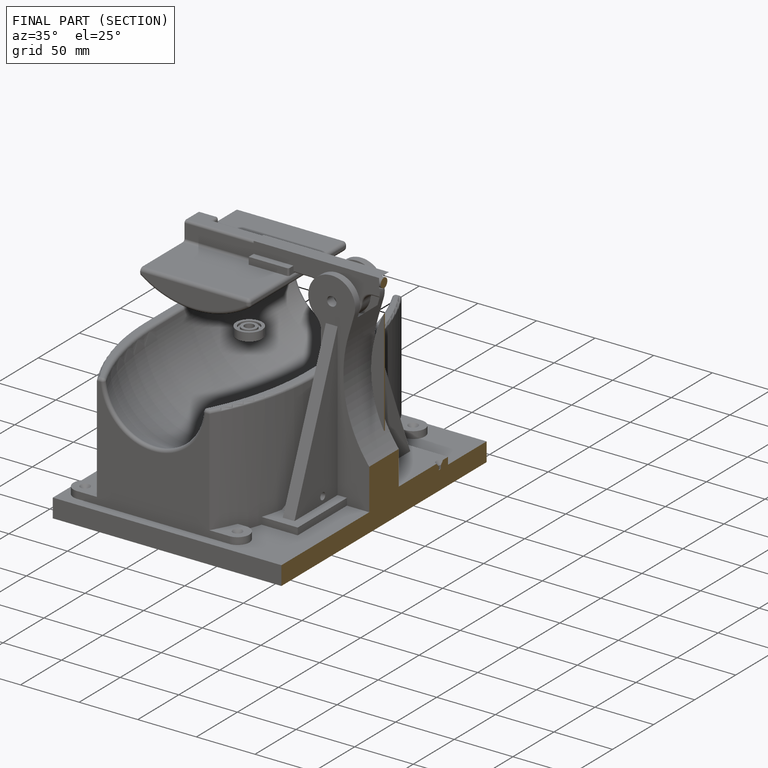
[diagram: finished part — half-section view (interior)]
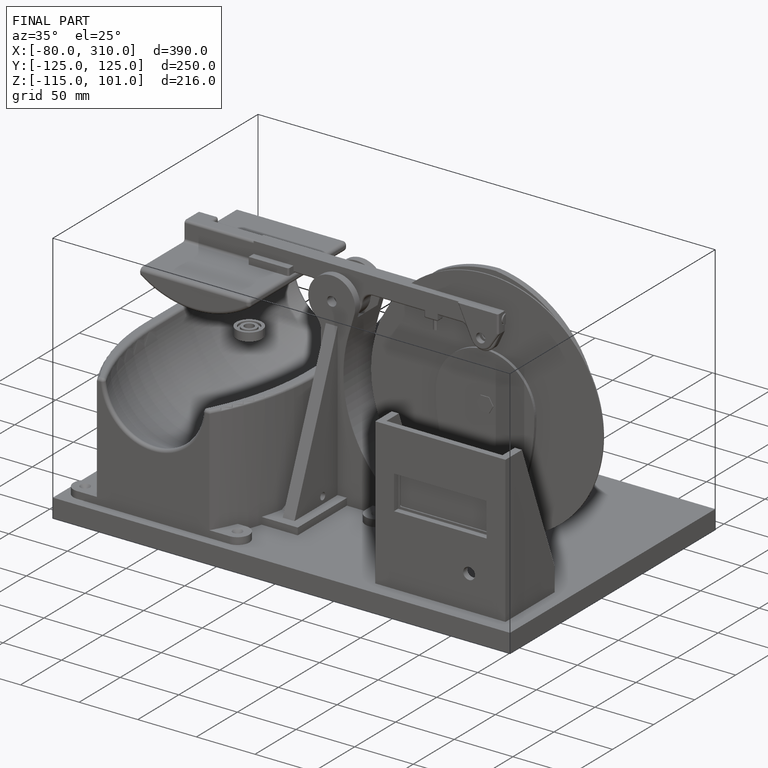
[diagram: finished part — iso view with bounding-box wireframe]
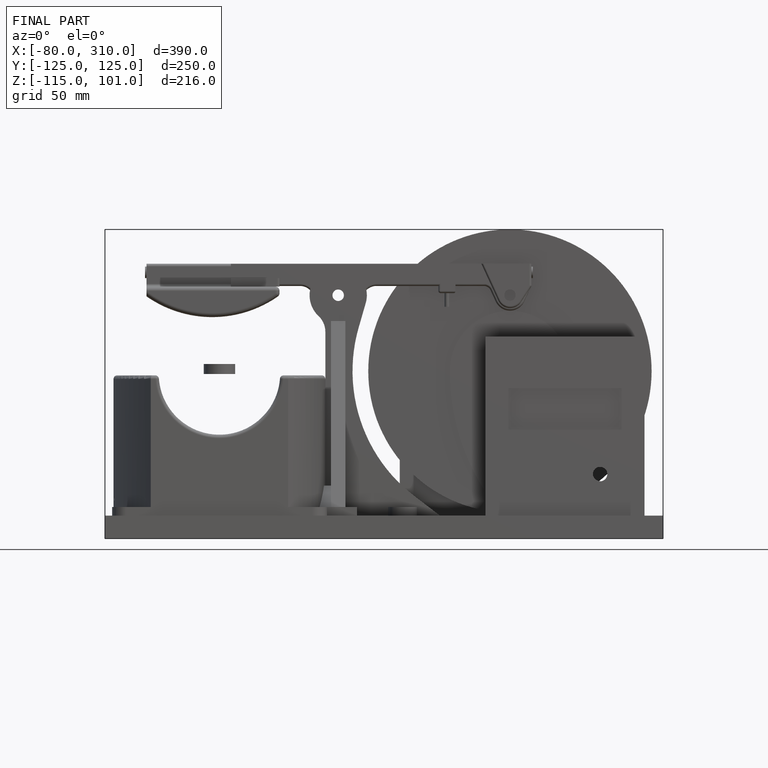
[diagram: finished part — front view with bounding-box wireframe]
